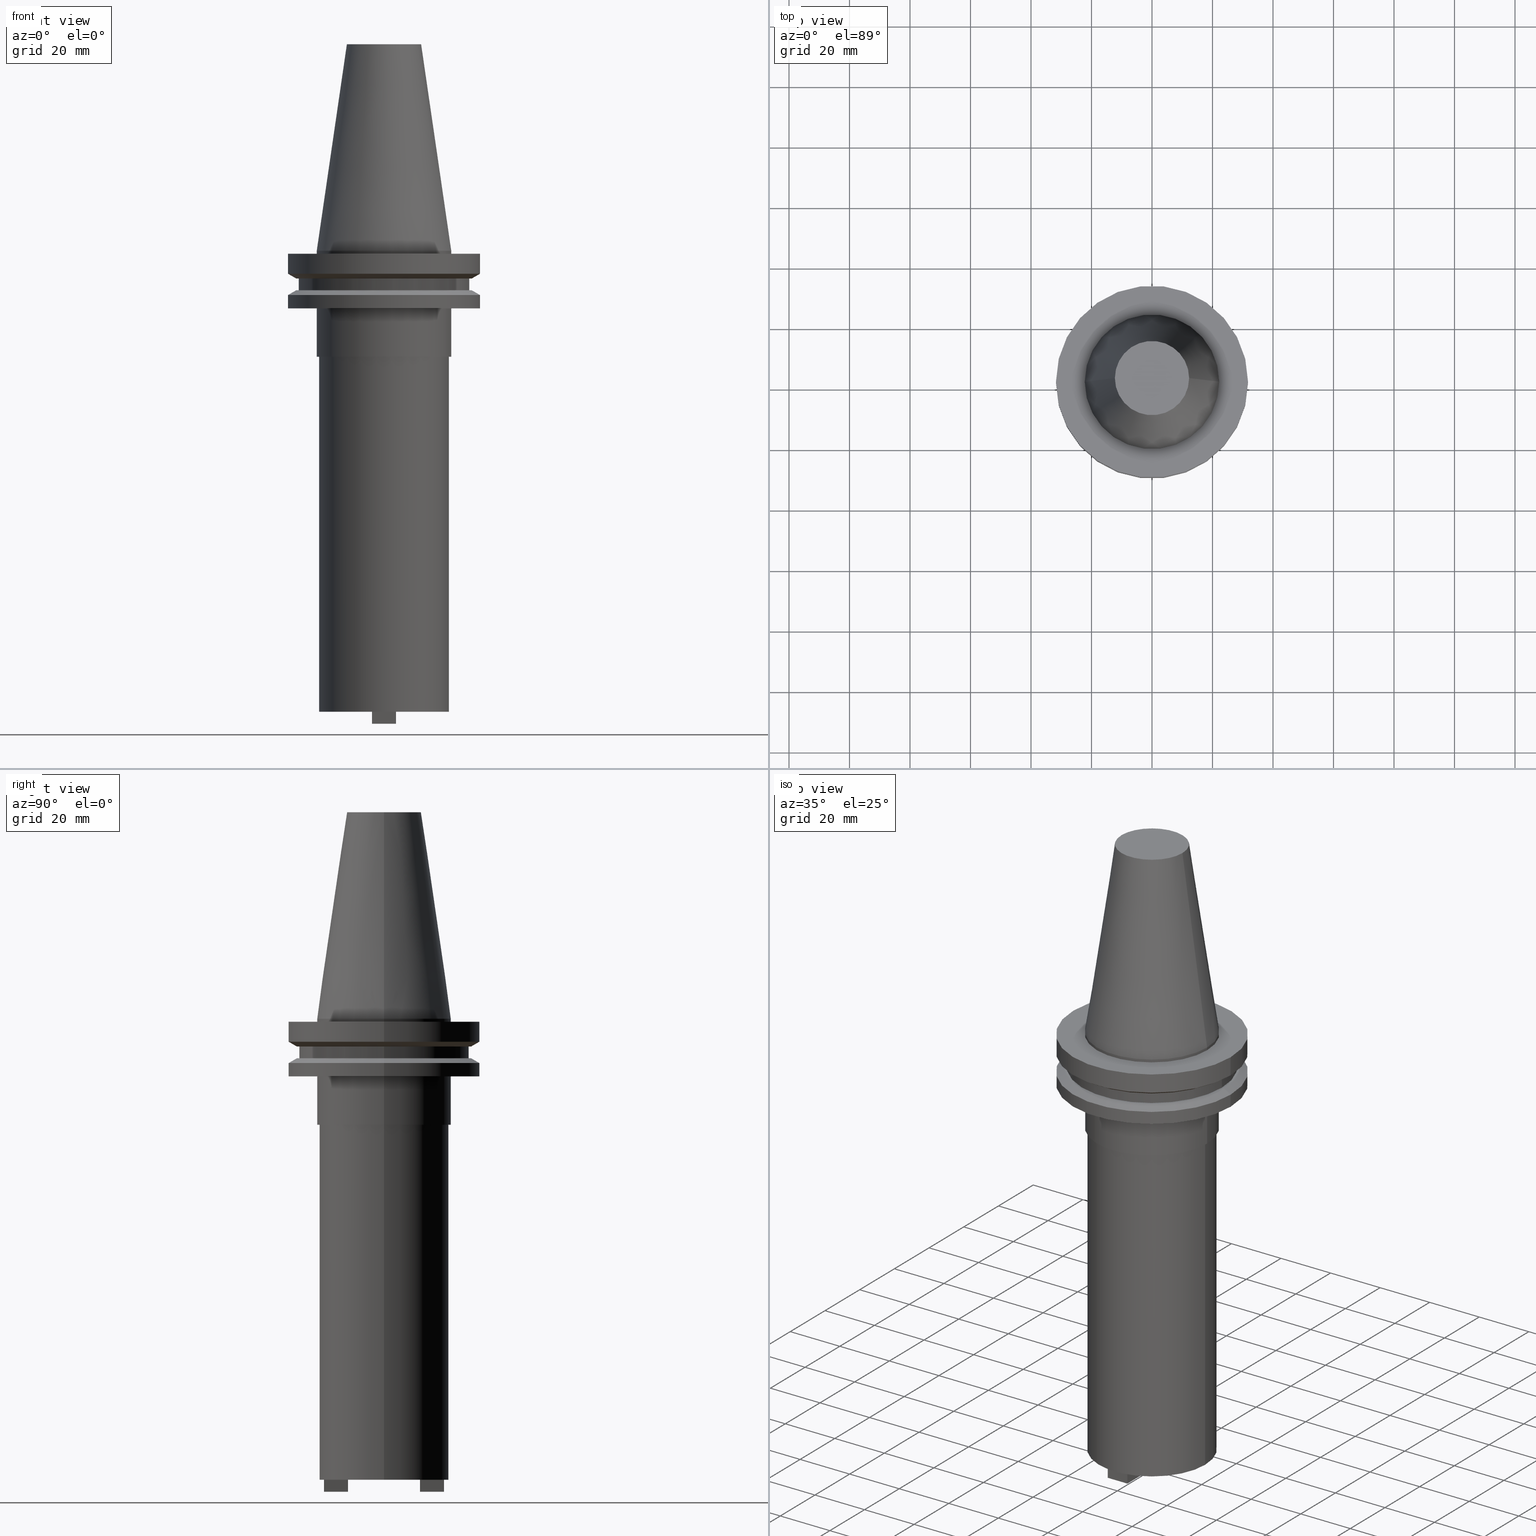
[diagram: canonical four-view strip — front | top / right | iso, engineering-drawing reading convention]
A machine part, canonical four-view strip (front | top / right | iso — engineering-drawing reading convention). The complete STEP part file that produces these views, byte-faithful:
ISO-10303-21;
HEADER;
FILE_DESCRIPTION (( 'STEP AP203' ),
    '1' );
FILE_NAME ('BCV40-SMC_750-6.STEP',
    '2022-02-25T14:57:58',
    ( '' ),
    ( '' ),
    'SwSTEP 2.0',
    'SolidWorks 2021',
    '' );
FILE_SCHEMA (( 'CONFIG_CONTROL_DESIGN' ));
ENDSEC;

DATA;
#1 = ORIENTED_EDGE ( 'NONE', *, *, #410, .T. ) ;
#2 = LINE ( 'NONE', #514, #229 ) ;
#3 = CARTESIAN_POINT ( 'NONE',  ( -4.215000000000001634, 5.161886258406095527E-16, 0.000000000000000000 ) ) ;
#4 = ORIENTED_EDGE ( 'NONE', *, *, #1050, .T. ) ;
#5 = ORIENTED_EDGE ( 'NONE', *, *, #367, .T. ) ;
#6 = DIRECTION ( 'NONE',  ( -0.000000000000000000, -0.000000000000000000, 1.000000000000000000 ) ) ;
#7 = CIRCLE ( 'NONE', #724, 31.75000000000000000 ) ;
#8 = LOCAL_TIME ( 8, 57, 58.00000000000000000, #537 ) ;
#9 = CARTESIAN_POINT ( 'NONE',  ( 0.000000000000000000, 0.000000000000000000, 0.000000000000000000 ) ) ;
#10 = ORIENTED_EDGE ( 'NONE', *, *, #488, .F. ) ;
#11 = ORIENTED_EDGE ( 'NONE', *, *, #858, .T. ) ;
#12 = DIRECTION ( 'NONE',  ( -0.000000000000000000, -0.000000000000000000, 1.000000000000000000 ) ) ;
#13 = AXIS2_PLACEMENT_3D ( 'NONE', #928, #614, #1008 ) ;
#14 = VECTOR ( 'NONE', #112, 1000.000000000000000 ) ;
#15 = AXIS2_PLACEMENT_3D ( 'NONE', #780, #177, #522 ) ;
#16 = EDGE_CURVE ( 'NONE', #720, #731, #697, .T. ) ;
#17 =( NAMED_UNIT ( * ) SI_UNIT ( $, .STERADIAN. ) SOLID_ANGLE_UNIT ( ) );
#18 = ORIENTED_EDGE ( 'NONE', *, *, #755, .T. ) ;
#19 = PRODUCT_DEFINITION_FORMATION_WITH_SPECIFIED_SOURCE ( 'ANY', '', #850, .NOT_KNOWN. ) ;
#20 = VERTEX_POINT ( 'NONE', #212 ) ;
#21 = DIRECTION ( 'NONE',  ( -0.000000000000000000, -0.000000000000000000, 1.000000000000000000 ) ) ;
#22 = CARTESIAN_POINT ( 'NONE',  ( 3.964999999999997193, -11.91000000000000014, -152.4000000000000057 ) ) ;
#23 = CARTESIAN_POINT ( 'NONE',  ( 3.964999999999997193, -11.90999999999999837, -156.3700000000000045 ) ) ;
#24 = ORIENTED_EDGE ( 'NONE', *, *, #86, .T. ) ;
#25 = EDGE_CURVE ( 'NONE', #184, #644, #283, .T. ) ;
#26 = DIRECTION ( 'NONE',  ( -0.000000000000000000, -0.000000000000000000, 1.000000000000000000 ) ) ;
#27 = AXIS2_PLACEMENT_3D ( 'NONE', #764, #599, #1087 ) ;
#28 = CARTESIAN_POINT ( 'NONE',  ( 4.215000000000006075, 0.000000000000000000, -152.4000000000000057 ) ) ;
#29 = ADVANCED_FACE ( 'NONE', ( #636 ), #314, .T. ) ;
#30 = VERTEX_POINT ( 'NONE', #948 ) ;
#31 = DIRECTION ( 'NONE',  ( 1.000000000000000000, 0.000000000000000000, 0.000000000000000000 ) ) ;
#32 = AXIS2_PLACEMENT_3D ( 'NONE', #656, #31, #1040 ) ;
#33 = DIRECTION ( 'NONE',  ( 1.000000000000000000, 0.000000000000000000, 0.000000000000000000 ) ) ;
#34 = EDGE_LOOP ( 'NONE', ( #1033, #916, #497, #323 ) ) ;
#35 = CARTESIAN_POINT ( 'NONE',  ( 21.44999999999999929, 0.000000000000000000, -152.4000000000000057 ) ) ;
#36 = APPROVAL_STATUS ( 'not_yet_approved' ) ;
#37 = DIRECTION ( 'NONE',  ( 1.000000000000000000, 0.000000000000000000, 0.000000000000000000 ) ) ;
#38 = VERTEX_POINT ( 'NONE', #865 ) ;
#39 = DIRECTION ( 'NONE',  ( -0.000000000000000000, -0.000000000000000000, 1.000000000000000000 ) ) ;
#40 = CIRCLE ( 'NONE', #435, 22.22500000000000142 ) ;
#41 = ORIENTED_EDGE ( 'NONE', *, *, #348, .F. ) ;
#42 = FACE_OUTER_BOUND ( 'NONE', #821, .T. ) ;
#43 = ADVANCED_FACE ( 'NONE', ( #860 ), #797, .T. ) ;
#44 = EDGE_LOOP ( 'NONE', ( #849, #788, #968, #531 ) ) ;
#45 = APPLICATION_CONTEXT ( 'configuration controlled 3d designs of mechanical parts and assemblies' ) ;
#46 = EDGE_LOOP ( 'NONE', ( #417, #11, #1009, #577 ) ) ;
#47 = LOCAL_TIME ( 8, 57, 58.00000000000000000, #120 ) ;
#48 = LINE ( 'NONE', #225, #96 ) ;
#49 = CALENDAR_DATE ( 2022, 25, 2 ) ;
#50 = FACE_OUTER_BOUND ( 'NONE', #142, .T. ) ;
#51 = PLANE ( 'NONE',  #32 ) ;
#52 = EDGE_CURVE ( 'NONE', #843, #832, #419, .T. ) ;
#53 = CARTESIAN_POINT ( 'NONE',  ( 0.000000000000000000, 0.000000000000000000, -35.04999999999999716 ) ) ;
#54 = CARTESIAN_POINT ( 'NONE',  ( 0.000000000000000000, 0.000000000000000000, -1.000000000000000888 ) ) ;
#55 = CARTESIAN_POINT ( 'NONE',  ( 22.22500000000000142, 2.721777511104992849E-15, 0.000000000000000000 ) ) ;
#56 = ORIENTED_EDGE ( 'NONE', *, *, #1050, .F. ) ;
#57 = CIRCLE ( 'NONE', #352, 21.44999999999999929 ) ;
#58 = EDGE_CURVE ( 'NONE', #180, #895, #40, .T. ) ;
#59 = DIRECTION ( 'NONE',  ( -1.000000000000000000, 0.000000000000000000, -0.000000000000000000 ) ) ;
#60 = DIRECTION ( 'NONE',  ( -1.000000000000000000, 0.000000000000000000, -0.000000000000000000 ) ) ;
#61 = DIRECTION ( 'NONE',  ( -1.000000000000000000, 0.000000000000000000, 0.000000000000000000 ) ) ;
#62 = ORIENTED_EDGE ( 'NONE', *, *, #367, .F. ) ;
#63 = EDGE_CURVE ( 'NONE', #762, #30, #944, .T. ) ;
#64 = DIRECTION ( 'NONE',  ( -0.000000000000000000, -0.000000000000000000, 1.000000000000000000 ) ) ;
#65 = CC_DESIGN_PERSON_AND_ORGANIZATION_ASSIGNMENT ( #958, #964, ( #842 ) ) ;
#66 = CARTESIAN_POINT ( 'NONE',  ( 3.964999999999997193, -11.90999999999999837, -156.3700000000000045 ) ) ;
#67 = VERTEX_POINT ( 'NONE', #196 ) ;
#68 = FACE_BOUND ( 'NONE', #680, .T. ) ;
#69 = ADVANCED_FACE ( 'NONE', ( #109 ), #453, .T. ) ;
#70 = PERSON ( 'UNSPECIFIED', 'UNSPECIFIED', 'UNSPECIFIED', ('UNSPECIFIED'), ('UNSPECIFIED'), ('UNSPECIFIED') ) ;
#71 = EDGE_CURVE ( 'NONE', #713, #922, #741, .T. ) ;
#72 = LINE ( 'NONE', #1062, #358 ) ;
#73 = ORIENTED_EDGE ( 'NONE', *, *, #63, .F. ) ;
#74 = ORIENTED_EDGE ( 'NONE', *, *, #255, .T. ) ;
#75 = CARTESIAN_POINT ( 'NONE',  ( 21.44999999999999929, 0.000000000000000000, -35.04999999999999716 ) ) ;
#76 = CONICAL_SURFACE ( 'NONE', #95, 28.97919780457007732, 1.047197551196598297 ) ;
#77 = CARTESIAN_POINT ( 'NONE',  ( -22.22500000000000142, 2.721777511104992849E-15, -19.04999999999999716 ) ) ;
#78 = CARTESIAN_POINT ( 'NONE',  ( 3.964999999999995417, 11.91000000000000192, -156.3700000000000045 ) ) ;
#79 = ORIENTED_EDGE ( 'NONE', *, *, #410, .F. ) ;
#80 = EDGE_LOOP ( 'NONE', ( #523, #772, #240, #939 ) ) ;
#81 = AXIS2_PLACEMENT_3D ( 'NONE', #681, #931, #852 ) ;
#82 = DIRECTION ( 'NONE',  ( 1.000000000000000000, 0.000000000000000000, 0.000000000000000000 ) ) ;
#83 = AXIS2_PLACEMENT_3D ( 'NONE', #683, #495, #407 ) ;
#84 = DIRECTION ( 'NONE',  ( -0.000000000000000000, -0.000000000000000000, 1.000000000000000000 ) ) ;
#85 = APPLICATION_PROTOCOL_DEFINITION ( 'international standard', 'config_control_design', 1994, #45 ) ;
#86 = EDGE_CURVE ( 'NONE', #38, #99, #1025, .T. ) ;
#87 = VERTEX_POINT ( 'NONE', #189 ) ;
#88 = CARTESIAN_POINT ( 'NONE',  ( -3.965000000000004299, 19.84000000000000341, -156.3700000000000045 ) ) ;
#89 = CARTESIAN_POINT ( 'NONE',  ( 0.000000000000000000, 0.000000000000000000, -35.04999999999999716 ) ) ;
#90 = CARTESIAN_POINT ( 'NONE',  ( -3.965000000000004299, -11.90999999999999837, -152.4000000000000057 ) ) ;
#91 = ORIENTED_EDGE ( 'NONE', *, *, #687, .F. ) ;
#92 = VERTEX_POINT ( 'NONE', #28 ) ;
#93 = FACE_OUTER_BOUND ( 'NONE', #304, .T. ) ;
#94 = ADVANCED_FACE ( 'NONE', ( #629 ), #76, .T. ) ;
#95 = AXIS2_PLACEMENT_3D ( 'NONE', #370, #712, #1032 ) ;
#96 = VECTOR ( 'NONE', #233, 1000.000000000000000 ) ;
#97 = DIRECTION ( 'NONE',  ( -1.000000000000000000, 0.000000000000000000, 0.000000000000000000 ) ) ;
#98 = EDGE_LOOP ( 'NONE', ( #1004, #236 ) ) ;
#99 = VERTEX_POINT ( 'NONE', #104 ) ;
#100 = CARTESIAN_POINT ( 'NONE',  ( -3.965000000000004299, -19.84000000000000341, -156.3700000000000045 ) ) ;
#101 = VECTOR ( 'NONE', #21, 1000.000000000000000 ) ;
#102 = CYLINDRICAL_SURFACE ( 'NONE', #927, 31.75000000000000000 ) ;
#103 = ADVANCED_FACE ( 'NONE', ( #124 ), #952, .F. ) ;
#104 = CARTESIAN_POINT ( 'NONE',  ( -31.75000000000000000, 3.888253587292846476E-15, -7.605276606597335842 ) ) ;
#105 = ORIENTED_EDGE ( 'NONE', *, *, #463, .T. ) ;
#106 = CARTESIAN_POINT ( 'NONE',  ( 0.000000000000000000, 0.000000000000000000, -14.65472339340266572 ) ) ;
#107 = EDGE_CURVE ( 'NONE', #935, #866, #164, .T. ) ;
#108 =( NAMED_UNIT ( * ) PLANE_ANGLE_UNIT ( ) SI_UNIT ( $, .RADIAN. ) );
#109 = FACE_OUTER_BOUND ( 'NONE', #467, .T. ) ;
#110 = ADVANCED_FACE ( 'NONE', ( #366, #116 ), #546, .F. ) ;
#111 = ORIENTED_EDGE ( 'NONE', *, *, #393, .F. ) ;
#112 = DIRECTION ( 'NONE',  ( 0.8660254037844389297, 0.000000000000000000, 0.4999999999999995004 ) ) ;
#113 = AXIS2_PLACEMENT_3D ( 'NONE', #879, #289, #208 ) ;
#114 = APPROVAL_DATE_TIME ( #465, #949 ) ;
#115 = CIRCLE ( 'NONE', #297, 28.97919780457007732 ) ;
#116 = FACE_BOUND ( 'NONE', #978, .T. ) ;
#117 = ORIENTED_EDGE ( 'NONE', *, *, #627, .T. ) ;
#118 = DIRECTION ( 'NONE',  ( 1.000000000000000000, 0.000000000000000000, 0.000000000000000000 ) ) ;
#119 = VECTOR ( 'NONE', #151, 1000.000000000000000 ) ;
#120 = COORDINATED_UNIVERSAL_TIME_OFFSET ( 6, 0, .BEHIND. ) ;
#121 = CARTESIAN_POINT ( 'NONE',  ( 0.000000000000000000, 0.000000000000000000, -152.4000000000000057 ) ) ;
#122 = ORIENTED_EDGE ( 'NONE', *, *, #277, .F. ) ;
#123 = COORDINATED_UNIVERSAL_TIME_OFFSET ( 6, 0, .BEHIND. ) ;
#124 = FACE_OUTER_BOUND ( 'NONE', #929, .T. ) ;
#125 = ORIENTED_EDGE ( 'NONE', *, *, #299, .T. ) ;
#126 = EDGE_CURVE ( 'NONE', #384, #214, #620, .T. ) ;
#127 = COORDINATED_UNIVERSAL_TIME_OFFSET ( 6, 0, .BEHIND. ) ;
#128 = CARTESIAN_POINT ( 'NONE',  ( 3.964999999999997193, -11.90999999999999837, -156.3700000000000045 ) ) ;
#129 = AXIS2_PLACEMENT_3D ( 'NONE', #926, #64, #329 ) ;
#130 = ORIENTED_EDGE ( 'NONE', *, *, #391, .F. ) ;
#131 = FACE_BOUND ( 'NONE', #300, .T. ) ;
#132 = CALENDAR_DATE ( 2022, 25, 2 ) ;
#133 = CYLINDRICAL_SURFACE ( 'NONE', #188, 31.75000000000000000 ) ;
#134 = EDGE_CURVE ( 'NONE', #922, #713, #57, .T. ) ;
#135 = DIRECTION ( 'NONE',  ( 1.000000000000000000, 0.000000000000000000, 0.000000000000000000 ) ) ;
#136 = ORIENTED_EDGE ( 'NONE', *, *, #1036, .F. ) ;
#137 = SECURITY_CLASSIFICATION ( '', '', #221 ) ;
#138 = DIRECTION ( 'NONE',  ( 1.000000000000000000, 0.000000000000000000, 0.000000000000000000 ) ) ;
#139 = LINE ( 'NONE', #145, #241 ) ;
#140 = EDGE_CURVE ( 'NONE', #180, #911, #874, .T. ) ;
#141 = CYLINDRICAL_SURFACE ( 'NONE', #287, 4.215000000000001634 ) ;
#142 = EDGE_LOOP ( 'NONE', ( #923, #147 ) ) ;
#143 = EDGE_CURVE ( 'NONE', #765, #866, #475, .T. ) ;
#144 = CARTESIAN_POINT ( 'NONE',  ( 3.964999999999997193, -19.83999999999999631, -156.3700000000000045 ) ) ;
#145 = CARTESIAN_POINT ( 'NONE',  ( -28.17999999999999972, 3.451054679997241634E-15, 68.25000000000000000 ) ) ;
#146 = FACE_OUTER_BOUND ( 'NONE', #777, .T. ) ;
#147 = ORIENTED_EDGE ( 'NONE', *, *, #616, .T. ) ;
#148 = VECTOR ( 'NONE', #624, 1000.000000000000000 ) ;
#149 = AXIS2_PLACEMENT_3D ( 'NONE', #980, #220, #138 ) ;
#150 = LINE ( 'NONE', #486, #494 ) ;
#151 = DIRECTION ( 'NONE',  ( 0.000000000000000000, -1.000000000000000000, 0.000000000000000000 ) ) ;
#152 = ORIENTED_EDGE ( 'NONE', *, *, #143, .T. ) ;
#153 = CIRCLE ( 'NONE', #587, 12.27178102086201150 ) ;
#154 = CONICAL_SURFACE ( 'NONE', #15, 31.75000000000000000, 1.047197551196597853 ) ;
#155 = CARTESIAN_POINT ( 'NONE',  ( 0.000000000000000000, 0.000000000000000000, 0.000000000000000000 ) ) ;
#156 = CARTESIAN_POINT ( 'NONE',  ( 0.000000000000000000, 0.000000000000000000, -9.205000000000005400 ) ) ;
#157 = DIRECTION ( 'NONE',  ( 0.000000000000000000, -0.000000000000000000, 1.000000000000000000 ) ) ;
#158 = VERTEX_POINT ( 'NONE', #500 ) ;
#159 = CARTESIAN_POINT ( 'NONE',  ( 0.000000000000000000, 22.22499999999999787, -35.04999999999999716 ) ) ;
#160 = DIRECTION ( 'NONE',  ( -0.000000000000000000, -0.000000000000000000, 1.000000000000000000 ) ) ;
#161 = CARTESIAN_POINT ( 'NONE',  ( 0.000000000000000000, 0.000000000000000000, 0.000000000000000000 ) ) ;
#162 = VERTEX_POINT ( 'NONE', #803 ) ;
#163 = ORIENTED_EDGE ( 'NONE', *, *, #280, .F. ) ;
#164 = CIRCLE ( 'NONE', #652, 31.75000000000000000 ) ;
#165 = PLANE ( 'NONE',  #891 ) ;
#166 = VECTOR ( 'NONE', #1051, 1000.000000000000000 ) ;
#167 = CARTESIAN_POINT ( 'NONE',  ( 0.000000000000000000, 0.000000000000000000, -19.04999999999999716 ) ) ;
#168 = ADVANCED_FACE ( 'NONE', ( #643 ), #133, .T. ) ;
#169 = DIRECTION ( 'NONE',  ( -0.000000000000000000, 0.000000000000000000, -1.000000000000000000 ) ) ;
#170 = ORIENTED_EDGE ( 'NONE', *, *, #134, .F. ) ;
#171 = EDGE_CURVE ( 'NONE', #441, #540, #139, .T. ) ;
#172 = ORIENTED_EDGE ( 'NONE', *, *, #653, .T. ) ;
#173 = AXIS2_PLACEMENT_3D ( 'NONE', #778, #957, #737 ) ;
#174 = DIRECTION ( 'NONE',  ( -0.000000000000000000, -0.000000000000000000, 1.000000000000000000 ) ) ;
#175 = LOCAL_TIME ( 8, 57, 58.00000000000000000, #123 ) ;
#176 = DIRECTION ( 'NONE',  ( 1.000000000000000000, 0.000000000000000000, 0.000000000000000000 ) ) ;
#177 = DIRECTION ( 'NONE',  ( 0.000000000000000000, 0.000000000000000000, -1.000000000000000000 ) ) ;
#178 = EDGE_LOOP ( 'NONE', ( #718, #403, #801, #558 ) ) ;
#179 = ADVANCED_FACE ( 'NONE', ( #42 ), #481, .F. ) ;
#180 = VERTEX_POINT ( 'NONE', #660 ) ;
#181 = CARTESIAN_POINT ( 'NONE',  ( -21.44999999999999929, 2.626867384171072557E-15, 0.000000000000000000 ) ) ;
#182 = DESIGN_CONTEXT ( 'detailed design', #735, 'design' ) ;
#183 = DIRECTION ( 'NONE',  ( -0.000000000000000000, 1.000000000000000000, -0.000000000000000000 ) ) ;
#184 = VERTEX_POINT ( 'NONE', #309 ) ;
#185 = ORIENTED_EDGE ( 'NONE', *, *, #767, .T. ) ;
#186 = LINE ( 'NONE', #181, #1065 ) ;
#187 = EDGE_CURVE ( 'NONE', #987, #983, #976, .T. ) ;
#188 = AXIS2_PLACEMENT_3D ( 'NONE', #897, #1052, #819 ) ;
#189 = CARTESIAN_POINT ( 'NONE',  ( -31.75000000000000000, 3.888253587292846476E-15, -1.000000000000000888 ) ) ;
#190 = ORIENTED_EDGE ( 'NONE', *, *, #814, .T. ) ;
#191 = DIRECTION ( 'NONE',  ( -0.000000000000000000, -0.000000000000000000, 1.000000000000000000 ) ) ;
#192 = EDGE_CURVE ( 'NONE', #162, #67, #386, .T. ) ;
#193 = AXIS2_PLACEMENT_3D ( 'NONE', #462, #794, #379 ) ;
#194 = EDGE_CURVE ( 'NONE', #99, #762, #1058, .T. ) ;
#195 = LINE ( 'NONE', #90, #231 ) ;
#196 = CARTESIAN_POINT ( 'NONE',  ( 3.964999999999997193, -11.90999999999999837, -156.3700000000000045 ) ) ;
#197 = ORIENTED_EDGE ( 'NONE', *, *, #86, .F. ) ;
#198 = DIRECTION ( 'NONE',  ( 1.000000000000000000, -0.000000000000000000, -0.000000000000000000 ) ) ;
#199 = APPLICATION_PROTOCOL_DEFINITION ( 'international standard', 'config_control_design', 1994, #735 ) ;
#200 = CARTESIAN_POINT ( 'NONE',  ( -28.97919780457007732, 3.548928183322474856E-15, -9.205000000000005400 ) ) ;
#201 = ORIENTED_EDGE ( 'NONE', *, *, #877, .T. ) ;
#202 = CARTESIAN_POINT ( 'NONE',  ( 0.000000000000000000, 0.000000000000000000, 68.25000000000000000 ) ) ;
#203 = CC_DESIGN_APPROVAL ( #460, ( #842 ) ) ;
#204 = UNCERTAINTY_MEASURE_WITH_UNIT (LENGTH_MEASURE( 1.000000000000000082E-05 ), #864, 'distance_accuracy_value', 'NONE');
#205 = VECTOR ( 'NONE', #1042, 1000.000000000000000 ) ;
#206 = PERSON_AND_ORGANIZATION ( #70, #707 ) ;
#207 = AXIS2_PLACEMENT_3D ( 'NONE', #155, #503, #658 ) ;
#208 = DIRECTION ( 'NONE',  ( 1.000000000000000000, 0.000000000000000000, 0.000000000000000000 ) ) ;
#209 = EDGE_LOOP ( 'NONE', ( #41, #371 ) ) ;
#210 = CARTESIAN_POINT ( 'NONE',  ( 3.964999999999995417, 19.84000000000000341, -156.3700000000000045 ) ) ;
#211 = PERSON_AND_ORGANIZATION ( #70, #707 ) ;
#212 = CARTESIAN_POINT ( 'NONE',  ( -3.965000000000004299, 11.91000000000000192, -152.4000000000000057 ) ) ;
#213 = CC_DESIGN_SECURITY_CLASSIFICATION ( #137, ( #19 ) ) ;
#214 = VERTEX_POINT ( 'NONE', #396 ) ;
#215 = EDGE_CURVE ( 'NONE', #723, #413, #981, .T. ) ;
#216 = DIRECTION ( 'NONE',  ( 1.000000000000000000, 0.000000000000000000, 0.000000000000000000 ) ) ;
#217 = DIRECTION ( 'NONE',  ( -0.000000000000000000, -0.000000000000000000, 1.000000000000000000 ) ) ;
#218 = EDGE_LOOP ( 'NONE', ( #440, #420, #74, #526 ) ) ;
#219 = EDGE_LOOP ( 'NONE', ( #566, #646, #18, #273 ) ) ;
#220 = DIRECTION ( 'NONE',  ( -0.000000000000000000, -0.000000000000000000, 1.000000000000000000 ) ) ;
#221 = SECURITY_CLASSIFICATION_LEVEL ( 'unclassified' ) ;
#222 = FACE_BOUND ( 'NONE', #209, .T. ) ;
#223 = AXIS2_PLACEMENT_3D ( 'NONE', #493, #60, #972 ) ;
#224 = EDGE_LOOP ( 'NONE', ( #434, #152, #770, #387 ) ) ;
#225 = CARTESIAN_POINT ( 'NONE',  ( -31.75000000000000000, 3.888253587292846476E-15, 68.25000000000000000 ) ) ;
#226 = ADVANCED_FACE ( 'NONE', ( #222, #50 ), #238, .F. ) ;
#227 = EDGE_CURVE ( 'NONE', #673, #20, #390, .T. ) ;
#228 = CARTESIAN_POINT ( 'NONE',  ( 21.44999999999999929, 0.000000000000000000, 0.000000000000000000 ) ) ;
#229 = VECTOR ( 'NONE', #773, 999.9999999999998863 ) ;
#230 = FACE_OUTER_BOUND ( 'NONE', #424, .T. ) ;
#231 = VECTOR ( 'NONE', #785, 1000.000000000000000 ) ;
#232 = ORIENTED_EDGE ( 'NONE', *, *, #877, .F. ) ;
#233 = DIRECTION ( 'NONE',  ( -0.000000000000000000, -0.000000000000000000, 1.000000000000000000 ) ) ;
#234 = DIRECTION ( 'NONE',  ( -0.000000000000000000, -0.000000000000000000, 1.000000000000000000 ) ) ;
#235 = DIRECTION ( 'NONE',  ( 1.000000000000000000, 0.000000000000000000, 0.000000000000000000 ) ) ;
#236 = ORIENTED_EDGE ( 'NONE', *, *, #372, .T. ) ;
#237 = FACE_BOUND ( 'NONE', #756, .T. ) ;
#238 = PLANE ( 'NONE',  #260 ) ;
#239 = FACE_OUTER_BOUND ( 'NONE', #219, .T. ) ;
#240 = ORIENTED_EDGE ( 'NONE', *, *, #1068, .T. ) ;
#241 = VECTOR ( 'NONE', #234, 1000.000000000000000 ) ;
#242 = EDGE_CURVE ( 'NONE', #713, #583, #319, .T. ) ;
#243 = VECTOR ( 'NONE', #160, 1000.000000000000000 ) ;
#244 = DIRECTION ( 'NONE',  ( -0.000000000000000000, -0.000000000000000000, 1.000000000000000000 ) ) ;
#245 = CARTESIAN_POINT ( 'NONE',  ( 3.964999999999995417, 19.84000000000000341, -156.3700000000000045 ) ) ;
#246 = DIRECTION ( 'NONE',  ( -0.000000000000000000, -0.000000000000000000, 1.000000000000000000 ) ) ;
#247 = EDGE_LOOP ( 'NONE', ( #190, #24, #136, #91 ) ) ;
#248 = AXIS2_PLACEMENT_3D ( 'NONE', #946, #807, #719 ) ;
#249 = ADVANCED_FACE ( 'NONE', ( #665 ), #557, .T. ) ;
#250 = CARTESIAN_POINT ( 'NONE',  ( 3.964999999999995417, 19.84000000000000341, -156.3700000000000045 ) ) ;
#251 = DIRECTION ( 'NONE',  ( -0.000000000000000000, -0.000000000000000000, 1.000000000000000000 ) ) ;
#252 = DIRECTION ( 'NONE',  ( 0.000000000000000000, 1.000000000000000000, 0.000000000000000000 ) ) ;
#253 = ORIENTED_EDGE ( 'NONE', *, *, #1083, .T. ) ;
#254 = CYLINDRICAL_SURFACE ( 'NONE', #908, 31.75000000000000000 ) ;
#255 = EDGE_CURVE ( 'NONE', #290, #583, #954, .T. ) ;
#256 = CARTESIAN_POINT ( 'NONE',  ( 22.22500000000000142, 0.000000000000000000, 68.25000000000000000 ) ) ;
#257 = CYLINDRICAL_SURFACE ( 'NONE', #714, 21.44999999999999929 ) ;
#258 = ORIENTED_EDGE ( 'NONE', *, *, #1083, .F. ) ;
#259 = ORIENTED_EDGE ( 'NONE', *, *, #455, .F. ) ;
#260 = AXIS2_PLACEMENT_3D ( 'NONE', #1069, #649, #325 ) ;
#261 = DIRECTION ( 'NONE',  ( 1.000000000000000000, 0.000000000000000000, 0.000000000000000000 ) ) ;
#262 = AXIS2_PLACEMENT_3D ( 'NONE', #822, #651, #328 ) ;
#263 = CARTESIAN_POINT ( 'NONE',  ( 0.000000000000000000, 0.000000000000000000, -13.05499999999999794 ) ) ;
#264 = ADVANCED_FACE ( 'NONE', ( #1061 ), #581, .T. ) ;
#265 = CARTESIAN_POINT ( 'NONE',  ( 3.964999999999997193, -19.83999999999998920, -152.4000000000000057 ) ) ;
#266 = ORIENTED_EDGE ( 'NONE', *, *, #381, .T. ) ;
#267 = ORIENTED_EDGE ( 'NONE', *, *, #622, .F. ) ;
#268 = AXIS2_PLACEMENT_3D ( 'NONE', #940, #532, #451 ) ;
#269 = DIRECTION ( 'NONE',  ( -0.000000000000000000, -0.000000000000000000, 1.000000000000000000 ) ) ;
#270 = CIRCLE ( 'NONE', #1066, 31.75000000000000000 ) ;
#271 = DIRECTION ( 'NONE',  ( -0.000000000000000000, -0.000000000000000000, 1.000000000000000000 ) ) ;
#272 = DIRECTION ( 'NONE',  ( -0.000000000000000000, -0.000000000000000000, 1.000000000000000000 ) ) ;
#273 = ORIENTED_EDGE ( 'NONE', *, *, #340, .F. ) ;
#274 = DIRECTION ( 'NONE',  ( -0.000000000000000000, -0.000000000000000000, 1.000000000000000000 ) ) ;
#275 = LINE ( 'NONE', #355, #551 ) ;
#276 = DIRECTION ( 'NONE',  ( -1.000000000000000000, 0.000000000000000000, 0.000000000000000000 ) ) ;
#277 = EDGE_CURVE ( 'NONE', #214, #935, #150, .T. ) ;
#278 = ORIENTED_EDGE ( 'NONE', *, *, #474, .T. ) ;
#279 = DIRECTION ( 'NONE',  ( -0.000000000000000000, -0.000000000000000000, 1.000000000000000000 ) ) ;
#280 = EDGE_CURVE ( 'NONE', #30, #87, #7, .T. ) ;
#281 = AXIS2_PLACEMENT_3D ( 'NONE', #466, #538, #276 ) ;
#282 = CARTESIAN_POINT ( 'NONE',  ( 0.000000000000000000, 0.000000000000000000, -156.3700000000000045 ) ) ;
#283 = LINE ( 'NONE', #534, #148 ) ;
#284 = ORIENTED_EDGE ( 'NONE', *, *, #1081, .F. ) ;
#285 = CARTESIAN_POINT ( 'NONE',  ( 28.97919780457007732, 0.000000000000000000, -9.205000000000005400 ) ) ;
#286 = AXIS2_PLACEMENT_3D ( 'NONE', #159, #924, #936 ) ;
#287 = AXIS2_PLACEMENT_3D ( 'NONE', #161, #511, #501 ) ;
#288 = FACE_OUTER_BOUND ( 'NONE', #798, .T. ) ;
#289 = DIRECTION ( 'NONE',  ( -0.000000000000000000, -0.000000000000000000, 1.000000000000000000 ) ) ;
#290 = VERTEX_POINT ( 'NONE', #586 ) ;
#291 = CARTESIAN_POINT ( 'NONE',  ( 28.97919780457008088, 3.718590885307660666E-15, -13.05499999999999794 ) ) ;
#292 = DIRECTION ( 'NONE',  ( -0.000000000000000000, -0.000000000000000000, 1.000000000000000000 ) ) ;
#293 = ADVANCED_BREP_SHAPE_REPRESENTATION ( 'BCV40-SMC_750-6', ( #668, #562 ), #600 ) ;
#294 = EDGE_LOOP ( 'NONE', ( #905, #10 ) ) ;
#295 = DIRECTION ( 'NONE',  ( -0.1443082272672999711, 0.000000000000000000, -0.9895327864921755756 ) ) ;
#296 = VECTOR ( 'NONE', #272, 1000.000000000000000 ) ;
#297 = AXIS2_PLACEMENT_3D ( 'NONE', #156, #251, #991 ) ;
#298 = CARTESIAN_POINT ( 'NONE',  ( 0.000000000000000000, 0.000000000000000000, 0.000000000000000000 ) ) ;
#299 = EDGE_CURVE ( 'NONE', #720, #861, #342, .T. ) ;
#300 = EDGE_LOOP ( 'NONE', ( #450, #278 ) ) ;
#301 = ORIENTED_EDGE ( 'NONE', *, *, #913, .T. ) ;
#302 = CIRCLE ( 'NONE', #859, 22.22500000000000142 ) ;
#303 = CARTESIAN_POINT ( 'NONE',  ( -3.965000000000004299, 19.84000000000000341, -156.3700000000000045 ) ) ;
#304 = EDGE_LOOP ( 'NONE', ( #1010, #808 ) ) ;
#305 = EDGE_CURVE ( 'NONE', #158, #935, #676, .T. ) ;
#306 = ORIENTED_EDGE ( 'NONE', *, *, #25, .F. ) ;
#307 = CARTESIAN_POINT ( 'NONE',  ( 0.000000000000000000, 0.000000000000000000, -13.05499999999999794 ) ) ;
#308 = PERSON_AND_ORGANIZATION ( #70, #707 ) ;
#309 = CARTESIAN_POINT ( 'NONE',  ( 3.964999999999997193, -19.83999999999999631, -156.3700000000000045 ) ) ;
#310 = EDGE_LOOP ( 'NONE', ( #484, #1057, #327, #573 ) ) ;
#311 = ADVANCED_FACE ( 'NONE', ( #909, #914 ), #829, .F. ) ;
#312 = LINE ( 'NONE', #409, #166 ) ;
#313 = CARTESIAN_POINT ( 'NONE',  ( 0.000000000000000000, 0.000000000000000000, -35.04999999999999716 ) ) ;
#314 = CONICAL_SURFACE ( 'NONE', #281, 22.22500000000000142, 0.1448138465474119174 ) ;
#315 = LINE ( 'NONE', #790, #1013 ) ;
#316 = CIRCLE ( 'NONE', #437, 28.17999999999999972 ) ;
#317 = ORIENTED_EDGE ( 'NONE', *, *, #814, .F. ) ;
#318 = FACE_BOUND ( 'NONE', #345, .T. ) ;
#319 = LINE ( 'NONE', #228, #901 ) ;
#320 = CIRCLE ( 'NONE', #925, 31.75000000000000000 ) ;
#321 = CYLINDRICAL_SURFACE ( 'NONE', #639, 22.22500000000000142 ) ;
#322 = AXIS2_PLACEMENT_3D ( 'NONE', #282, #169, #448 ) ;
#323 = ORIENTED_EDGE ( 'NONE', *, *, #616, .F. ) ;
#324 = LOCAL_TIME ( 8, 57, 58.00000000000000000, #127 ) ;
#325 = DIRECTION ( 'NONE',  ( -1.000000000000000000, 0.000000000000000000, -0.000000000000000000 ) ) ;
#326 = DIRECTION ( 'NONE',  ( -0.000000000000000000, -0.000000000000000000, 1.000000000000000000 ) ) ;
#327 = ORIENTED_EDGE ( 'NONE', *, *, #726, .T. ) ;
#328 = DIRECTION ( 'NONE',  ( 1.000000000000000000, 0.000000000000000000, 0.000000000000000000 ) ) ;
#329 = DIRECTION ( 'NONE',  ( 1.000000000000000000, 0.000000000000000000, 0.000000000000000000 ) ) ;
#330 = DIRECTION ( 'NONE',  ( 1.000000000000000000, 0.000000000000000000, 0.000000000000000000 ) ) ;
#331 = ORIENTED_EDGE ( 'NONE', *, *, #1068, .F. ) ;
#332 = CIRCLE ( 'NONE', #129, 22.22500000000000142 ) ;
#333 = FACE_OUTER_BOUND ( 'NONE', #615, .T. ) ;
#334 = CARTESIAN_POINT ( 'NONE',  ( 0.000000000000000000, 0.000000000000000000, -13.05499999999999794 ) ) ;
#335 = CARTESIAN_POINT ( 'NONE',  ( 3.964999999999997193, -11.90999999999999837, -156.3700000000000045 ) ) ;
#336 = ORIENTED_EDGE ( 'NONE', *, *, #732, .F. ) ;
#337 = AXIS2_PLACEMENT_3D ( 'NONE', #347, #766, #675 ) ;
#338 = ORIENTED_EDGE ( 'NONE', *, *, #455, .T. ) ;
#339 = DIRECTION ( 'NONE',  ( 0.000000000000000000, 0.000000000000000000, -1.000000000000000000 ) ) ;
#340 = EDGE_CURVE ( 'NONE', #92, #843, #431, .T. ) ;
#341 = CC_DESIGN_PERSON_AND_ORGANIZATION_ASSIGNMENT ( #376, #642, ( #19 ) ) ;
#342 = LINE ( 'NONE', #245, #853 ) ;
#343 = DIRECTION ( 'NONE',  ( -1.000000000000000000, 0.000000000000000000, -0.000000000000000000 ) ) ;
#344 = ORIENTED_EDGE ( 'NONE', *, *, #255, .F. ) ;
#345 = EDGE_LOOP ( 'NONE', ( #56, #259, #554, #258 ) ) ;
#346 = EDGE_CURVE ( 'NONE', #502, #880, #527, .T. ) ;
#347 = CARTESIAN_POINT ( 'NONE',  ( 0.000000000000000000, 12.27178102086201150, 68.25000000000000000 ) ) ;
#348 = EDGE_CURVE ( 'NONE', #895, #180, #332, .T. ) ;
#349 = DIRECTION ( 'NONE',  ( 1.000000000000000000, 0.000000000000000000, 0.000000000000000000 ) ) ;
#350 = CARTESIAN_POINT ( 'NONE',  ( 0.000000000000000000, 0.000000000000000000, 0.000000000000000000 ) ) ;
#351 = ORIENTED_EDGE ( 'NONE', *, *, #227, .F. ) ;
#352 = AXIS2_PLACEMENT_3D ( 'NONE', #1038, #292, #632 ) ;
#353 = CARTESIAN_POINT ( 'NONE',  ( 22.22500000000000142, 0.000000000000000000, 68.25000000000000000 ) ) ;
#354 = AXIS2_PLACEMENT_3D ( 'NONE', #263, #670, #176 ) ;
#355 = CARTESIAN_POINT ( 'NONE',  ( -3.965000000000004299, 19.84000000000000341, -152.4000000000000057 ) ) ;
#356 = ORIENTED_EDGE ( 'NONE', *, *, #953, .F. ) ;
#357 = ORIENTED_EDGE ( 'NONE', *, *, #16, .T. ) ;
#358 = VECTOR ( 'NONE', #760, 1000.000000000000000 ) ;
#359 = FACE_OUTER_BOUND ( 'NONE', #625, .T. ) ;
#360 = EDGE_CURVE ( 'NONE', #775, #832, #1002, .T. ) ;
#361 = FACE_OUTER_BOUND ( 'NONE', #224, .T. ) ;
#362 = EDGE_LOOP ( 'NONE', ( #884, #185, #125, #999 ) ) ;
#363 = ORIENTED_EDGE ( 'NONE', *, *, #463, .F. ) ;
#364 = LINE ( 'NONE', #285, #14 ) ;
#365 = DIRECTION ( 'NONE',  ( -0.000000000000000000, -0.000000000000000000, 1.000000000000000000 ) ) ;
#366 = FACE_OUTER_BOUND ( 'NONE', #612, .T. ) ;
#367 = EDGE_CURVE ( 'NONE', #158, #765, #818, .T. ) ;
#368 = ORIENTED_EDGE ( 'NONE', *, *, #858, .F. ) ;
#369 = LINE ( 'NONE', #703, #443 ) ;
#370 = CARTESIAN_POINT ( 'NONE',  ( 0.000000000000000000, 0.000000000000000000, -9.205000000000005400 ) ) ;
#371 = ORIENTED_EDGE ( 'NONE', *, *, #58, .F. ) ;
#372 = EDGE_CURVE ( 'NONE', #540, #596, #872, .T. ) ;
#373 = CARTESIAN_POINT ( 'NONE',  ( -4.215000000000001634, 5.161886258406095527E-16, -35.04999999999999716 ) ) ;
#374 = AXIS2_PLACEMENT_3D ( 'NONE', #1067, #900, #994 ) ;
#375 = EDGE_CURVE ( 'NONE', #38, #657, #115, .T. ) ;
#376 = PERSON_AND_ORGANIZATION ( #70, #707 ) ;
#377 = CARTESIAN_POINT ( 'NONE',  ( 0.000000000000000000, 0.000000000000000000, -19.04999999999999716 ) ) ;
#378 = EDGE_LOOP ( 'NONE', ( #356, #344 ) ) ;
#379 = DIRECTION ( 'NONE',  ( 1.000000000000000000, 0.000000000000000000, 0.000000000000000000 ) ) ;
#380 = ORIENTED_EDGE ( 'NONE', *, *, #828, .F. ) ;
#381 = EDGE_CURVE ( 'NONE', #524, #392, #512, .T. ) ;
#382 = SHAPE_DEFINITION_REPRESENTATION ( #607, #293 ) ;
#383 = DIRECTION ( 'NONE',  ( 1.000000000000000000, 0.000000000000000000, 0.000000000000000000 ) ) ;
#384 = VERTEX_POINT ( 'NONE', #505 ) ;
#385 = VECTOR ( 'NONE', #415, 1000.000000000000000 ) ;
#386 = LINE ( 'NONE', #128, #457 ) ;
#387 = ORIENTED_EDGE ( 'NONE', *, *, #305, .F. ) ;
#388 = VECTOR ( 'NONE', #571, 1000.000000000000000 ) ;
#389 = CALENDAR_DATE ( 2022, 25, 2 ) ;
#390 = LINE ( 'NONE', #580, #769 ) ;
#391 = EDGE_CURVE ( 'NONE', #744, #441, #902, .T. ) ;
#392 = VERTEX_POINT ( 'NONE', #77 ) ;
#393 = EDGE_CURVE ( 'NONE', #895, #933, #682, .T. ) ;
#394 = CARTESIAN_POINT ( 'NONE',  ( 3.964999999999997193, -19.83999999999999631, -152.4000000000000057 ) ) ;
#395 = APPROVAL_ROLE ( '' ) ;
#396 = CARTESIAN_POINT ( 'NONE',  ( -31.74999999999999289, 3.888253587292845687E-15, -19.04999999999999716 ) ) ;
#397 = CARTESIAN_POINT ( 'NONE',  ( 4.215000000000001634, 0.000000000000000000, -35.04999999999999716 ) ) ;
#398 = ORIENTED_EDGE ( 'NONE', *, *, #425, .F. ) ;
#399 = FACE_OUTER_BOUND ( 'NONE', #870, .T. ) ;
#400 = DIRECTION ( 'NONE',  ( -0.000000000000000000, -0.000000000000000000, 1.000000000000000000 ) ) ;
#401 = DIRECTION ( 'NONE',  ( 1.000000000000000000, 0.000000000000000000, 0.000000000000000000 ) ) ;
#402 = CIRCLE ( 'NONE', #1007, 4.215000000000006075 ) ;
#403 = ORIENTED_EDGE ( 'NONE', *, *, #277, .T. ) ;
#404 = CARTESIAN_POINT ( 'NONE',  ( -28.17999999999999972, 3.451054679997241634E-15, -13.05499999999999794 ) ) ;
#405 = DIRECTION ( 'NONE',  ( 1.000000000000000000, -0.000000000000000000, -0.000000000000000000 ) ) ;
#406 = VECTOR ( 'NONE', #326, 1000.000000000000000 ) ;
#407 = DIRECTION ( 'NONE',  ( -1.000000000000000000, -8.750181467726643344E-16, 0.000000000000000000 ) ) ;
#408 = ORIENTED_EDGE ( 'NONE', *, *, #215, .F. ) ;
#409 = CARTESIAN_POINT ( 'NONE',  ( -3.965000000000004299, -11.90999999999999837, -156.3700000000000045 ) ) ;
#410 = EDGE_CURVE ( 'NONE', #214, #384, #604, .T. ) ;
#411 = DIRECTION ( 'NONE',  ( 1.000000000000000000, 0.000000000000000000, 0.000000000000000000 ) ) ;
#412 = LINE ( 'NONE', #904, #119 ) ;
#413 = VERTEX_POINT ( 'NONE', #975 ) ;
#414 = LINE ( 'NONE', #144, #956 ) ;
#415 = DIRECTION ( 'NONE',  ( -0.8660254037844387076, 0.000000000000000000, -0.4999999999999998890 ) ) ;
#416 = DIRECTION ( 'NONE',  ( -0.000000000000000000, 0.000000000000000000, 1.000000000000000000 ) ) ;
#417 = ORIENTED_EDGE ( 'NONE', *, *, #346, .T. ) ;
#418 = EDGE_CURVE ( 'NONE', #441, #744, #316, .T. ) ;
#419 = CIRCLE ( 'NONE', #113, 4.215000000000001634 ) ;
#420 = ORIENTED_EDGE ( 'NONE', *, *, #622, .T. ) ;
#421 = CARTESIAN_POINT ( 'NONE',  ( 0.000000000000000000, 0.000000000000000000, -19.04999999999999716 ) ) ;
#422 = CARTESIAN_POINT ( 'NONE',  ( -3.965000000000004299, -11.91000000000000014, -152.4000000000000057 ) ) ;
#423 = CIRCLE ( 'NONE', #1030, 28.97919780457008088 ) ;
#424 = EDGE_LOOP ( 'NONE', ( #950, #751, #694, #590 ) ) ;
#425 = EDGE_CURVE ( 'NONE', #644, #162, #312, .T. ) ;
#426 = EDGE_LOOP ( 'NONE', ( #1063, #1084, #1049, #336 ) ) ;
#427 = CARTESIAN_POINT ( 'NONE',  ( 28.97919780457007732, 0.000000000000000000, -9.205000000000005400 ) ) ;
#428 = DIRECTION ( 'NONE',  ( 1.000000000000000000, 0.000000000000000000, 0.000000000000000000 ) ) ;
#429 = CARTESIAN_POINT ( 'NONE',  ( 3.964999999999997193, -11.90999999999999837, -152.4000000000000057 ) ) ;
#430 = LINE ( 'NONE', #862, #101 ) ;
#431 = LINE ( 'NONE', #997, #802 ) ;
#432 = DIRECTION ( 'NONE',  ( 0.000000000000000000, -1.000000000000000000, 0.000000000000000000 ) ) ;
#433 = ORIENTED_EDGE ( 'NONE', *, *, #593, .F. ) ;
#434 = ORIENTED_EDGE ( 'NONE', *, *, #653, .F. ) ;
#435 = AXIS2_PLACEMENT_3D ( 'NONE', #705, #39, #722 ) ;
#436 = CARTESIAN_POINT ( 'NONE',  ( -3.965000000000004299, -19.84000000000000341, -156.3700000000000045 ) ) ;
#437 = AXIS2_PLACEMENT_3D ( 'NONE', #307, #485, #499 ) ;
#438 = ADVANCED_FACE ( 'NONE', ( #68, #669 ), #815, .F. ) ;
#439 = CARTESIAN_POINT ( 'NONE',  ( 3.964999999999997193, -11.90999999999999837, -156.3700000000000045 ) ) ;
#440 = ORIENTED_EDGE ( 'NONE', *, *, #71, .T. ) ;
#441 = VERTEX_POINT ( 'NONE', #404 ) ;
#442 = CIRCLE ( 'NONE', #13, 12.27178102086201150 ) ;
#443 = VECTOR ( 'NONE', #873, 1000.000000000000000 ) ;
#444 = PLANE ( 'NONE',  #193 ) ;
#445 = AXIS2_PLACEMENT_3D ( 'NONE', #608, #365, #768 ) ;
#446 = APPROVAL_PERSON_ORGANIZATION ( #308, #491, #552 ) ;
#447 = ADVANCED_FACE ( 'NONE', ( #984 ), #749, .T. ) ;
#448 = DIRECTION ( 'NONE',  ( -1.000000000000000000, 0.000000000000000000, 0.000000000000000000 ) ) ;
#449 = DIRECTION ( 'NONE',  ( 0.000000000000000000, 0.000000000000000000, -1.000000000000000000 ) ) ;
#450 = ORIENTED_EDGE ( 'NONE', *, *, #988, .T. ) ;
#451 = DIRECTION ( 'NONE',  ( 1.000000000000000000, 0.000000000000000000, 0.000000000000000000 ) ) ;
#452 = DIRECTION ( 'NONE',  ( 1.000000000000000000, -0.000000000000000000, -0.000000000000000000 ) ) ;
#453 = PLANE ( 'NONE',  #563 ) ;
#454 = VERTEX_POINT ( 'NONE', #885 ) ;
#455 = EDGE_CURVE ( 'NONE', #983, #795, #560, .T. ) ;
#456 = CARTESIAN_POINT ( 'NONE',  ( 3.964999999999995417, 11.91000000000000192, -156.3700000000000045 ) ) ;
#457 = VECTOR ( 'NONE', #405, 1000.000000000000000 ) ;
#458 = VECTOR ( 'NONE', #567, 1000.000000000000000 ) ;
#459 = CARTESIAN_POINT ( 'NONE',  ( 0.000000000000000000, 31.74999999999999289, -19.04999999999999716 ) ) ;
#460 = APPROVAL ( #564, 'UNSPECIFIED' ) ;
#461 = ORIENTED_EDGE ( 'NONE', *, *, #340, .T. ) ;
#462 = CARTESIAN_POINT ( 'NONE',  ( 0.000000000000000000, 22.22499999999999787, -35.04999999999999716 ) ) ;
#463 = EDGE_CURVE ( 'NONE', #861, #1071, #989, .T. ) ;
#464 = CIRCLE ( 'NONE', #589, 22.22500000000000142 ) ;
#465 = DATE_AND_TIME ( #49, #47 ) ;
#466 = CARTESIAN_POINT ( 'NONE',  ( 0.000000000000000000, 0.000000000000000000, 0.000000000000000000 ) ) ;
#467 = EDGE_LOOP ( 'NONE', ( #1074, #1089, #1082, #701 ) ) ;
#468 = PERSON_AND_ORGANIZATION_ROLE ( 'classification_officer' ) ;
#469 = DIRECTION ( 'NONE',  ( -0.000000000000000000, -0.000000000000000000, 1.000000000000000000 ) ) ;
#470 = ORIENTED_EDGE ( 'NONE', *, *, #375, .F. ) ;
#471 = ADVANCED_FACE ( 'NONE', ( #237, #805, #131, #318 ), #810, .F. ) ;
#472 = AXIS2_PLACEMENT_3D ( 'NONE', #893, #806, #736 ) ;
#473 = CALENDAR_DATE ( 2022, 25, 2 ) ;
#474 = EDGE_CURVE ( 'NONE', #775, #92, #402, .T. ) ;
#475 = LINE ( 'NONE', #730, #691 ) ;
#476 = EDGE_LOOP ( 'NONE', ( #317, #470 ) ) ;
#477 = EDGE_LOOP ( 'NONE', ( #267, #663, #1053, #698 ) ) ;
#478 = DIRECTION ( 'NONE',  ( -0.000000000000000000, -0.000000000000000000, 1.000000000000000000 ) ) ;
#479 = AXIS2_PLACEMENT_3D ( 'NONE', #827, #1054, #579 ) ;
#480 = APPROVAL_STATUS ( 'not_yet_approved' ) ;
#481 = PLANE ( 'NONE',  #223 ) ;
#482 = CYLINDRICAL_SURFACE ( 'NONE', #550, 28.17999999999999972 ) ;
#483 = EDGE_LOOP ( 'NONE', ( #650, #1039, #163, #73 ) ) ;
#484 = ORIENTED_EDGE ( 'NONE', *, *, #570, .F. ) ;
#485 = DIRECTION ( 'NONE',  ( -0.000000000000000000, -0.000000000000000000, 1.000000000000000000 ) ) ;
#486 = CARTESIAN_POINT ( 'NONE',  ( -31.75000000000000000, 3.888253587292846476E-15, 68.25000000000000000 ) ) ;
#487 = CARTESIAN_POINT ( 'NONE',  ( 0.000000000000000000, 0.000000000000000000, 0.000000000000000000 ) ) ;
#488 = EDGE_CURVE ( 'NONE', #880, #502, #693, .T. ) ;
#489 = ORIENTED_EDGE ( 'NONE', *, *, #299, .F. ) ;
#490 = EDGE_CURVE ( 'NONE', #911, #933, #544, .T. ) ;
#491 = APPROVAL ( #36, 'UNSPECIFIED' ) ;
#492 = CYLINDRICAL_SURFACE ( 'NONE', #374, 4.215000000000001634 ) ;
#493 = CARTESIAN_POINT ( 'NONE',  ( 3.964999999999995417, 19.84000000000000341, -156.3700000000000045 ) ) ;
#494 = VECTOR ( 'NONE', #811, 1000.000000000000000 ) ;
#495 = DIRECTION ( 'NONE',  ( -8.750181467726643344E-16, 1.000000000000000000, 0.000000000000000000 ) ) ;
#496 = VECTOR ( 'NONE', #919, 1000.000000000000000 ) ;
#497 = ORIENTED_EDGE ( 'NONE', *, *, #63, .T. ) ;
#498 = EDGE_CURVE ( 'NONE', #99, #87, #48, .T. ) ;
#499 = DIRECTION ( 'NONE',  ( 1.000000000000000000, 0.000000000000000000, 0.000000000000000000 ) ) ;
#500 = CARTESIAN_POINT ( 'NONE',  ( -28.97919780457008088, 0.000000000000000000, -13.05499999999999794 ) ) ;
#501 = DIRECTION ( 'NONE',  ( 1.000000000000000000, 0.000000000000000000, 0.000000000000000000 ) ) ;
#502 = VERTEX_POINT ( 'NONE', #574 ) ;
#503 = DIRECTION ( 'NONE',  ( -0.000000000000000000, -0.000000000000000000, 1.000000000000000000 ) ) ;
#504 = EDGE_CURVE ( 'NONE', #184, #983, #414, .T. ) ;
#505 = CARTESIAN_POINT ( 'NONE',  ( 31.74999999999999289, 0.000000000000000000, -19.04999999999999716 ) ) ;
#506 = DIRECTION ( 'NONE',  ( 0.000000000000000000, 0.000000000000000000, -1.000000000000000000 ) ) ;
#507 = EDGE_LOOP ( 'NONE', ( #630, #62, #854, #837 ) ) ;
#508 = CYLINDRICAL_SURFACE ( 'NONE', #1086, 31.75000000000000000 ) ;
#509 = DIRECTION ( 'NONE',  ( 1.000000000000000000, 0.000000000000000000, 0.000000000000000000 ) ) ;
#510 = ADVANCED_FACE ( 'NONE', ( #733 ), #960, .T. ) ;
#511 = DIRECTION ( 'NONE',  ( -0.000000000000000000, -0.000000000000000000, 1.000000000000000000 ) ) ;
#512 = CIRCLE ( 'NONE', #27, 22.22500000000000142 ) ;
#513 = ORIENTED_EDGE ( 'NONE', *, *, #375, .T. ) ;
#514 = CARTESIAN_POINT ( 'NONE',  ( 22.22500000000000142, 2.721777511104992849E-15, 0.000000000000000000 ) ) ;
#515 = CARTESIAN_POINT ( 'NONE',  ( 0.000000000000000000, 28.97919780457007732, -9.204999999999996518 ) ) ;
#516 = DIRECTION ( 'NONE',  ( 1.000000000000000000, 0.000000000000000000, 0.000000000000000000 ) ) ;
#517 = CIRCLE ( 'NONE', #173, 4.215000000000001634 ) ;
#518 = EDGE_LOOP ( 'NONE', ( #667, #351, #380, #105 ) ) ;
#519 = ORIENTED_EDGE ( 'NONE', *, *, #16, .F. ) ;
#520 = DIRECTION ( 'NONE',  ( -0.000000000000000000, -0.000000000000000000, 1.000000000000000000 ) ) ;
#521 = CARTESIAN_POINT ( 'NONE',  ( 0.000000000000000000, 0.000000000000000000, -9.204999999999991189 ) ) ;
#522 = DIRECTION ( 'NONE',  ( -1.000000000000000000, 0.000000000000000000, 0.000000000000000000 ) ) ;
#523 = ORIENTED_EDGE ( 'NONE', *, *, #774, .F. ) ;
#524 = VERTEX_POINT ( 'NONE', #896 ) ;
#525 = CYLINDRICAL_SURFACE ( 'NONE', #610, 22.22500000000000142 ) ;
#526 = ORIENTED_EDGE ( 'NONE', *, *, #242, .F. ) ;
#527 = CIRCLE ( 'NONE', #671, 22.22499999999999787 ) ;
#528 = PLANE ( 'NONE',  #839 ) ;
#529 = ADVANCED_FACE ( 'NONE', ( #399 ), #492, .F. ) ;
#530 = DIRECTION ( 'NONE',  ( -0.000000000000000000, -0.000000000000000000, 1.000000000000000000 ) ) ;
#531 = ORIENTED_EDGE ( 'NONE', *, *, #372, .F. ) ;
#532 = DIRECTION ( 'NONE',  ( -0.000000000000000000, -0.000000000000000000, 1.000000000000000000 ) ) ;
#533 = LINE ( 'NONE', #848, #1014 ) ;
#534 = CARTESIAN_POINT ( 'NONE',  ( 3.964999999999997193, -19.83999999999999631, -156.3700000000000045 ) ) ;
#535 = EDGE_LOOP ( 'NONE', ( #638, #408, #542, #761 ) ) ;
#536 = DIRECTION ( 'NONE',  ( 1.000000000000000000, 0.000000000000000000, 0.000000000000000000 ) ) ;
#537 = COORDINATED_UNIVERSAL_TIME_OFFSET ( 6, 0, .BEHIND. ) ;
#538 = DIRECTION ( 'NONE',  ( 0.000000000000000000, 0.000000000000000000, -1.000000000000000000 ) ) ;
#539 = ADVANCED_FACE ( 'NONE', ( #333 ), #752, .F. ) ;
#540 = VERTEX_POINT ( 'NONE', #613 ) ;
#541 = FACE_BOUND ( 'NONE', #378, .T. ) ;
#542 = ORIENTED_EDGE ( 'NONE', *, *, #962, .F. ) ;
#543 = AXIS2_PLACEMENT_3D ( 'NONE', #377, #717, #383 ) ;
#544 = CIRCLE ( 'NONE', #207, 22.22500000000000142 ) ;
#545 = COORDINATED_UNIVERSAL_TIME_OFFSET ( 6, 0, .BEHIND. ) ;
#546 = PLANE ( 'NONE',  #937 ) ;
#547 = ORIENTED_EDGE ( 'NONE', *, *, #504, .F. ) ;
#548 = CARTESIAN_POINT ( 'NONE',  ( 3.964999999999995417, 19.84000000000000341, -152.4000000000000057 ) ) ;
#549 = AXIS2_PLACEMENT_3D ( 'NONE', #743, #506, #401 ) ;
#550 = AXIS2_PLACEMENT_3D ( 'NONE', #202, #626, #118 ) ;
#551 = VECTOR ( 'NONE', #183, 1000.000000000000000 ) ;
#552 = APPROVAL_ROLE ( '' ) ;
#553 = DIRECTION ( 'NONE',  ( -0.000000000000000000, -0.000000000000000000, 1.000000000000000000 ) ) ;
#554 = ORIENTED_EDGE ( 'NONE', *, *, #187, .F. ) ;
#555 = ADVANCED_FACE ( 'NONE', ( #359 ), #165, .F. ) ;
#556 = PERSON_AND_ORGANIZATION_ROLE ( 'design_owner' ) ;
#557 = CYLINDRICAL_SURFACE ( 'NONE', #472, 28.17999999999999972 ) ;
#558 = ORIENTED_EDGE ( 'NONE', *, *, #674, .F. ) ;
#559 = ORIENTED_EDGE ( 'NONE', *, *, #593, .T. ) ;
#560 = LINE ( 'NONE', #394, #1045 ) ;
#561 = EDGE_CURVE ( 'NONE', #502, #524, #1005, .T. ) ;
#562 = AXIS2_PLACEMENT_3D ( 'NONE', #350, #796, #216 ) ;
#563 = AXIS2_PLACEMENT_3D ( 'NONE', #700, #1020, #618 ) ;
#564 = APPROVAL_STATUS ( 'not_yet_approved' ) ;
#565 = DIRECTION ( 'NONE',  ( -0.000000000000000000, -0.000000000000000000, 1.000000000000000000 ) ) ;
#566 = ORIENTED_EDGE ( 'NONE', *, *, #474, .F. ) ;
#567 = DIRECTION ( 'NONE',  ( -0.000000000000000000, -0.000000000000000000, 1.000000000000000000 ) ) ;
#568 = CONICAL_SURFACE ( 'NONE', #1064, 22.22500000000000142, 0.1448138465474119174 ) ;
#569 = DIRECTION ( 'NONE',  ( 1.000000000000000000, 0.000000000000000000, 0.000000000000000000 ) ) ;
#570 = EDGE_CURVE ( 'NONE', #454, #933, #2, .T. ) ;
#571 = DIRECTION ( 'NONE',  ( -1.000000000000000000, 0.000000000000000000, 0.000000000000000000 ) ) ;
#572 = CC_DESIGN_APPROVAL ( #949, ( #137 ) ) ;
#573 = ORIENTED_EDGE ( 'NONE', *, *, #490, .T. ) ;
#574 = CARTESIAN_POINT ( 'NONE',  ( 22.22499999999999787, 0.000000000000000000, -35.04999999999999716 ) ) ;
#575 = DIRECTION ( 'NONE',  ( 0.000000000000000000, -1.000000000000000000, 0.000000000000000000 ) ) ;
#576 = PLANE ( 'NONE',  #890 ) ;
#577 = ORIENTED_EDGE ( 'NONE', *, *, #561, .F. ) ;
#578 = ADVANCED_FACE ( 'NONE', ( #592 ), #508, .T. ) ;
#579 = DIRECTION ( 'NONE',  ( -1.000000000000000000, 0.000000000000000000, 0.000000000000000000 ) ) ;
#580 = CARTESIAN_POINT ( 'NONE',  ( -3.965000000000004299, 11.91000000000000192, -156.3700000000000045 ) ) ;
#581 = CONICAL_SURFACE ( 'NONE', #635, 28.97919780457007732, 1.047197551196598297 ) ;
#582 = CARTESIAN_POINT ( 'NONE',  ( -22.22500000000000142, 0.000000000000000000, 0.000000000000000000 ) ) ;
#583 = VERTEX_POINT ( 'NONE', #75 ) ;
#584 = DIRECTION ( 'NONE',  ( 1.000000000000000000, 0.000000000000000000, 0.000000000000000000 ) ) ;
#585 = ADVANCED_FACE ( 'NONE', ( #93 ), #1018, .F. ) ;
#586 = CARTESIAN_POINT ( 'NONE',  ( -21.44999999999999929, 2.626867384171072557E-15, -35.04999999999999716 ) ) ;
#587 = AXIS2_PLACEMENT_3D ( 'NONE', #876, #279, #135 ) ;
#588 = LINE ( 'NONE', #1003, #1031 ) ;
#589 = AXIS2_PLACEMENT_3D ( 'NONE', #9, #1019, #932 ) ;
#590 = ORIENTED_EDGE ( 'NONE', *, *, #490, .F. ) ;
#591 = APPROVAL_PERSON_ORGANIZATION ( #206, #949, #878 ) ;
#592 = FACE_OUTER_BOUND ( 'NONE', #34, .T. ) ;
#593 = EDGE_CURVE ( 'NONE', #392, #524, #302, .T. ) ;
#594 = DIRECTION ( 'NONE',  ( 1.000000000000000000, 0.000000000000000000, 0.000000000000000000 ) ) ;
#595 = CARTESIAN_POINT ( 'NONE',  ( 3.964999999999995417, 11.91000000000000192, -156.3700000000000045 ) ) ;
#596 = VERTEX_POINT ( 'NONE', #1077 ) ;
#597 = ORIENTED_EDGE ( 'NONE', *, *, #52, .T. ) ;
#598 = DIRECTION ( 'NONE',  ( 1.000000000000000000, 0.000000000000000000, 0.000000000000000000 ) ) ;
#599 = DIRECTION ( 'NONE',  ( -0.000000000000000000, -0.000000000000000000, 1.000000000000000000 ) ) ;
#600 =( GEOMETRIC_REPRESENTATION_CONTEXT ( 3 ) GLOBAL_UNCERTAINTY_ASSIGNED_CONTEXT ( ( #204 ) ) GLOBAL_UNIT_ASSIGNED_CONTEXT ( ( #864, #108, #17 ) ) REPRESENTATION_CONTEXT ( 'NONE', 'WORKASPACE' ) );
#601 = LINE ( 'NONE', #1080, #996 ) ;
#602 = AXIS2_PLACEMENT_3D ( 'NONE', #1047, #985, #725 ) ;
#603 = EDGE_LOOP ( 'NONE', ( #4, #633, #398, #117 ) ) ;
#604 = CIRCLE ( 'NONE', #654, 31.74999999999999289 ) ;
#605 = ORIENTED_EDGE ( 'NONE', *, *, #913, .F. ) ;
#606 = DIRECTION ( 'NONE',  ( 1.000000000000000000, 0.000000000000000000, 0.000000000000000000 ) ) ;
#607 = PRODUCT_DEFINITION_SHAPE ( 'NONE', 'NONE',  #842 ) ;
#608 = CARTESIAN_POINT ( 'NONE',  ( 0.000000000000000000, 0.000000000000000000, -152.4000000000000057 ) ) ;
#609 = CIRCLE ( 'NONE', #549, 21.44999999999999929 ) ;
#610 = AXIS2_PLACEMENT_3D ( 'NONE', #1011, #6, #598 ) ;
#611 = ORIENTED_EDGE ( 'NONE', *, *, #687, .T. ) ;
#612 = EDGE_LOOP ( 'NONE', ( #966, #79 ) ) ;
#613 = CARTESIAN_POINT ( 'NONE',  ( -28.17999999999999972, 3.451054679997241634E-15, -9.204999999999991189 ) ) ;
#614 = DIRECTION ( 'NONE',  ( -0.000000000000000000, -0.000000000000000000, 1.000000000000000000 ) ) ;
#615 = EDGE_LOOP ( 'NONE', ( #1000, #930 ) ) ;
#616 = EDGE_CURVE ( 'NONE', #87, #30, #728, .T. ) ;
#617 = FACE_OUTER_BOUND ( 'NONE', #535, .T. ) ;
#618 = DIRECTION ( 'NONE',  ( -1.000000000000000000, 0.000000000000000000, -0.000000000000000000 ) ) ;
#619 = ORIENTED_EDGE ( 'NONE', *, *, #215, .T. ) ;
#620 = CIRCLE ( 'NONE', #543, 31.74999999999999289 ) ;
#621 = CARTESIAN_POINT ( 'NONE',  ( -4.215000000000006075, 5.161886258406101444E-16, -152.4000000000000057 ) ) ;
#622 = EDGE_CURVE ( 'NONE', #922, #290, #186, .T. ) ;
#623 = CARTESIAN_POINT ( 'NONE',  ( 0.000000000000000000, 0.000000000000000000, -7.605276606597335842 ) ) ;
#624 = DIRECTION ( 'NONE',  ( -1.000000000000000000, -8.750181467726642358E-16, 0.000000000000000000 ) ) ;
#625 = EDGE_LOOP ( 'NONE', ( #201, #519, #748, #619 ) ) ;
#626 = DIRECTION ( 'NONE',  ( -0.000000000000000000, -0.000000000000000000, 1.000000000000000000 ) ) ;
#627 = EDGE_CURVE ( 'NONE', #644, #795, #1001, .T. ) ;
#628 = DATE_TIME_ROLE ( 'creation_date' ) ;
#629 = FACE_OUTER_BOUND ( 'NONE', #247, .T. ) ;
#630 = ORIENTED_EDGE ( 'NONE', *, *, #143, .F. ) ;
#631 = LINE ( 'NONE', #210, #792 ) ;
#632 = DIRECTION ( 'NONE',  ( 1.000000000000000000, 0.000000000000000000, 0.000000000000000000 ) ) ;
#633 = ORIENTED_EDGE ( 'NONE', *, *, #809, .F. ) ;
#634 = FACE_OUTER_BOUND ( 'NONE', #603, .T. ) ;
#635 = AXIS2_PLACEMENT_3D ( 'NONE', #742, #655, #569 ) ;
#636 = FACE_OUTER_BOUND ( 'NONE', #80, .T. ) ;
#637 = ADVANCED_FACE ( 'NONE', ( #846 ), #525, .T. ) ;
#638 = ORIENTED_EDGE ( 'NONE', *, *, #1081, .T. ) ;
#639 = AXIS2_PLACEMENT_3D ( 'NONE', #661, #820, #516 ) ;
#640 = VECTOR ( 'NONE', #174, 1000.000000000000000 ) ;
#641 = VECTOR ( 'NONE', #432, 1000.000000000000000 ) ;
#642 = PERSON_AND_ORGANIZATION_ROLE ( 'design_supplier' ) ;
#643 = FACE_OUTER_BOUND ( 'NONE', #483, .T. ) ;
#644 = VERTEX_POINT ( 'NONE', #436 ) ;
#645 = ADVANCED_FACE ( 'NONE', ( #917 ), #254, .T. ) ;
#646 = ORIENTED_EDGE ( 'NONE', *, *, #360, .T. ) ;
#647 = DIRECTION ( 'NONE',  ( 1.000000000000000000, 0.000000000000000000, 0.000000000000000000 ) ) ;
#648 = DATE_AND_TIME ( #389, #175 ) ;
#649 = DIRECTION ( 'NONE',  ( 0.000000000000000000, 0.000000000000000000, -1.000000000000000000 ) ) ;
#650 = ORIENTED_EDGE ( 'NONE', *, *, #1036, .T. ) ;
#651 = DIRECTION ( 'NONE',  ( 0.000000000000000000, -0.000000000000000000, 1.000000000000000000 ) ) ;
#652 = AXIS2_PLACEMENT_3D ( 'NONE', #959, #469, #781 ) ;
#653 = EDGE_CURVE ( 'NONE', #765, #158, #423, .T. ) ;
#654 = AXIS2_PLACEMENT_3D ( 'NONE', #167, #84, #647 ) ;
#655 = DIRECTION ( 'NONE',  ( -0.000000000000000000, -0.000000000000000000, 1.000000000000000000 ) ) ;
#656 = CARTESIAN_POINT ( 'NONE',  ( -3.965000000000004299, -11.90999999999999837, -156.3700000000000045 ) ) ;
#657 = VERTEX_POINT ( 'NONE', #427 ) ;
#658 = DIRECTION ( 'NONE',  ( 1.000000000000000000, 0.000000000000000000, 0.000000000000000000 ) ) ;
#659 = ADVANCED_FACE ( 'NONE', ( #617 ), #528, .F. ) ;
#660 = CARTESIAN_POINT ( 'NONE',  ( -22.22500000000000142, 2.721777511104992849E-15, -1.000000000000000888 ) ) ;
#661 = CARTESIAN_POINT ( 'NONE',  ( 0.000000000000000000, 0.000000000000000000, 68.25000000000000000 ) ) ;
#662 = CC_DESIGN_APPROVAL ( #491, ( #19 ) ) ;
#663 = ORIENTED_EDGE ( 'NONE', *, *, #134, .T. ) ;
#664 = DIRECTION ( 'NONE',  ( 0.000000000000000000, 0.000000000000000000, -1.000000000000000000 ) ) ;
#665 = FACE_OUTER_BOUND ( 'NONE', #426, .T. ) ;
#666 = DIRECTION ( 'NONE',  ( 1.000000000000000000, -0.000000000000000000, -0.000000000000000000 ) ) ;
#667 = ORIENTED_EDGE ( 'NONE', *, *, #1075, .T. ) ;
#668 = MANIFOLD_SOLID_BREP ( 'SQ', #1078 ) ;
#669 = FACE_OUTER_BOUND ( 'NONE', #973, .T. ) ;
#670 = DIRECTION ( 'NONE',  ( -0.000000000000000000, -0.000000000000000000, 1.000000000000000000 ) ) ;
#671 = AXIS2_PLACEMENT_3D ( 'NONE', #89, #688, #428 ) ;
#672 = CARTESIAN_POINT ( 'NONE',  ( -31.75000000000000000, 3.888253587292846476E-15, -14.65472339340266572 ) ) ;
#673 = VERTEX_POINT ( 'NONE', #857 ) ;
#674 = EDGE_CURVE ( 'NONE', #384, #866, #430, .T. ) ;
#675 = DIRECTION ( 'NONE',  ( -1.000000000000000000, 0.000000000000000000, -0.000000000000000000 ) ) ;
#676 = LINE ( 'NONE', #1079, #385 ) ;
#677 = CIRCLE ( 'NONE', #759, 28.17999999999999972 ) ;
#678 = CARTESIAN_POINT ( 'NONE',  ( -21.44999999999999929, 2.626867384171072557E-15, -152.4000000000000057 ) ) ;
#679 = ORIENTED_EDGE ( 'NONE', *, *, #504, .T. ) ;
#680 = EDGE_LOOP ( 'NONE', ( #130, #889 ) ) ;
#681 = CARTESIAN_POINT ( 'NONE',  ( 0.000000000000000000, 0.000000000000000000, -1.000000000000000888 ) ) ;
#682 = LINE ( 'NONE', #256, #496 ) ;
#683 = CARTESIAN_POINT ( 'NONE',  ( 3.964999999999997193, -19.83999999999999631, -156.3700000000000045 ) ) ;
#684 = EDGE_LOOP ( 'NONE', ( #692, #547, #738, #993 ) ) ;
#685 = EDGE_LOOP ( 'NONE', ( #727, #170 ) ) ;
#686 = DIRECTION ( 'NONE',  ( -0.000000000000000000, -0.000000000000000000, 1.000000000000000000 ) ) ;
#687 = EDGE_CURVE ( 'NONE', #657, #762, #364, .T. ) ;
#688 = DIRECTION ( 'NONE',  ( -0.000000000000000000, -0.000000000000000000, 1.000000000000000000 ) ) ;
#689 = LOCAL_TIME ( 8, 57, 58.00000000000000000, #545 ) ;
#690 = CARTESIAN_POINT ( 'NONE',  ( 3.964999999999995417, 11.91000000000000192, -152.4000000000000057 ) ) ;
#691 = VECTOR ( 'NONE', #1055, 1000.000000000000000 ) ;
#692 = ORIENTED_EDGE ( 'NONE', *, *, #187, .T. ) ;
#693 = CIRCLE ( 'NONE', #771, 22.22499999999999787 ) ;
#694 = ORIENTED_EDGE ( 'NONE', *, *, #393, .T. ) ;
#695 = CARTESIAN_POINT ( 'NONE',  ( 0.000000000000000000, 0.000000000000000000, 68.25000000000000000 ) ) ;
#696 = LINE ( 'NONE', #429, #918 ) ;
#697 = LINE ( 'NONE', #1017, #296 ) ;
#698 = ORIENTED_EDGE ( 'NONE', *, *, #953, .T. ) ;
#699 = CARTESIAN_POINT ( 'NONE',  ( 0.000000000000000000, 0.000000000000000000, -13.05499999999999794 ) ) ;
#700 = CARTESIAN_POINT ( 'NONE',  ( 0.000000000000000000, 0.000000000000000000, -156.3700000000000045 ) ) ;
#701 = ORIENTED_EDGE ( 'NONE', *, *, #25, .T. ) ;
#702 = ADVANCED_FACE ( 'NONE', ( #634 ), #51, .F. ) ;
#703 = CARTESIAN_POINT ( 'NONE',  ( 28.17999999999999972, 0.000000000000000000, 68.25000000000000000 ) ) ;
#704 = CARTESIAN_POINT ( 'NONE',  ( 0.000000000000000000, 0.000000000000000000, 68.25000000000000000 ) ) ;
#705 = CARTESIAN_POINT ( 'NONE',  ( 0.000000000000000000, 0.000000000000000000, -1.000000000000000888 ) ) ;
#706 = ORIENTED_EDGE ( 'NONE', *, *, #348, .T. ) ;
#707 = ORGANIZATION ( 'UNSPECIFIED', 'UNSPECIFIED', '' ) ;
#708 = AXIS2_PLACEMENT_3D ( 'NONE', #121, #786, #938 ) ;
#709 = CARTESIAN_POINT ( 'NONE',  ( 28.17999999999999972, 0.000000000000000000, -13.05499999999999794 ) ) ;
#710 = ORIENTED_EDGE ( 'NONE', *, *, #107, .F. ) ;
#711 = FACE_OUTER_BOUND ( 'NONE', #362, .T. ) ;
#712 = DIRECTION ( 'NONE',  ( -0.000000000000000000, -0.000000000000000000, 1.000000000000000000 ) ) ;
#713 = VERTEX_POINT ( 'NONE', #35 ) ;
#714 = AXIS2_PLACEMENT_3D ( 'NONE', #487, #1073, #330 ) ;
#715 = CYLINDRICAL_SURFACE ( 'NONE', #268, 22.22500000000000142 ) ;
#716 = PERSON_AND_ORGANIZATION ( #70, #707 ) ;
#717 = DIRECTION ( 'NONE',  ( -0.000000000000000000, -0.000000000000000000, 1.000000000000000000 ) ) ;
#718 = ORIENTED_EDGE ( 'NONE', *, *, #126, .T. ) ;
#719 = DIRECTION ( 'NONE',  ( 1.000000000000000000, 0.000000000000000000, 0.000000000000000000 ) ) ;
#720 = VERTEX_POINT ( 'NONE', #1027 ) ;
#721 = DATE_TIME_ROLE ( 'classification_date' ) ;
#722 = DIRECTION ( 'NONE',  ( 1.000000000000000000, 0.000000000000000000, 0.000000000000000000 ) ) ;
#723 = VERTEX_POINT ( 'NONE', #977 ) ;
#724 = AXIS2_PLACEMENT_3D ( 'NONE', #54, #400, #411 ) ;
#725 = DIRECTION ( 'NONE',  ( 1.000000000000000000, 0.000000000000000000, 0.000000000000000000 ) ) ;
#726 = EDGE_CURVE ( 'NONE', #856, #911, #1034, .T. ) ;
#727 = ORIENTED_EDGE ( 'NONE', *, *, #71, .F. ) ;
#728 = CIRCLE ( 'NONE', #81, 31.75000000000000000 ) ;
#729 = MECHANICAL_CONTEXT ( 'NONE', #45, 'mechanical' ) ;
#730 = CARTESIAN_POINT ( 'NONE',  ( 31.75000000000000000, 3.888253587292846476E-15, -14.65472339340266572 ) ) ;
#731 = VERTEX_POINT ( 'NONE', #548 ) ;
#732 = EDGE_CURVE ( 'NONE', #744, #596, #369, .T. ) ;
#733 = FACE_OUTER_BOUND ( 'NONE', #507, .T. ) ;
#734 = APPROVAL_DATE_TIME ( #1046, #460 ) ;
#735 = APPLICATION_CONTEXT ( 'configuration controlled 3d designs of mechanical parts and assemblies' ) ;
#736 = DIRECTION ( 'NONE',  ( 1.000000000000000000, 0.000000000000000000, 0.000000000000000000 ) ) ;
#737 = DIRECTION ( 'NONE',  ( 1.000000000000000000, 0.000000000000000000, 0.000000000000000000 ) ) ;
#738 = ORIENTED_EDGE ( 'NONE', *, *, #1015, .F. ) ;
#739 = APPROVAL_PERSON_ORGANIZATION ( #716, #460, #395 ) ;
#740 = DIRECTION ( 'NONE',  ( -0.000000000000000000, -0.000000000000000000, 1.000000000000000000 ) ) ;
#741 = CIRCLE ( 'NONE', #708, 21.44999999999999929 ) ;
#742 = CARTESIAN_POINT ( 'NONE',  ( 0.000000000000000000, 0.000000000000000000, -9.205000000000005400 ) ) ;
#743 = CARTESIAN_POINT ( 'NONE',  ( 0.000000000000000000, 0.000000000000000000, -35.04999999999999716 ) ) ;
#744 = VERTEX_POINT ( 'NONE', #709 ) ;
#745 = CARTESIAN_POINT ( 'NONE',  ( 0.000000000000000000, 0.000000000000000000, -152.4000000000000057 ) ) ;
#746 = DIRECTION ( 'NONE',  ( -0.000000000000000000, -0.000000000000000000, 1.000000000000000000 ) ) ;
#747 = FACE_OUTER_BOUND ( 'NONE', #310, .T. ) ;
#748 = ORIENTED_EDGE ( 'NONE', *, *, #767, .F. ) ;
#749 = CYLINDRICAL_SURFACE ( 'NONE', #149, 22.22500000000000142 ) ;
#750 = FACE_OUTER_BOUND ( 'NONE', #875, .T. ) ;
#751 = ORIENTED_EDGE ( 'NONE', *, *, #58, .T. ) ;
#752 = PLANE ( 'NONE',  #337 ) ;
#753 = CARTESIAN_POINT ( 'NONE',  ( 31.75000000000000000, 0.000000000000000000, -14.65472339340266572 ) ) ;
#754 = ORIENTED_EDGE ( 'NONE', *, *, #627, .F. ) ;
#755 = EDGE_CURVE ( 'NONE', #832, #843, #517, .T. ) ;
#756 = EDGE_LOOP ( 'NONE', ( #284, #831, #605, #232 ) ) ;
#757 = DIRECTION ( 'NONE',  ( 1.000000000000000000, 0.000000000000000000, 0.000000000000000000 ) ) ;
#758 = DIRECTION ( 'NONE',  ( 0.000000000000000000, -0.000000000000000000, 1.000000000000000000 ) ) ;
#759 = AXIS2_PLACEMENT_3D ( 'NONE', #825, #1070, #235 ) ;
#760 = DIRECTION ( 'NONE',  ( -0.000000000000000000, 1.000000000000000000, -0.000000000000000000 ) ) ;
#761 = ORIENTED_EDGE ( 'NONE', *, *, #227, .T. ) ;
#762 = VERTEX_POINT ( 'NONE', #1022 ) ;
#763 = DIRECTION ( 'NONE',  ( 0.000000000000000000, 0.000000000000000000, -1.000000000000000000 ) ) ;
#764 = CARTESIAN_POINT ( 'NONE',  ( 0.000000000000000000, 0.000000000000000000, -19.04999999999999716 ) ) ;
#765 = VERTEX_POINT ( 'NONE', #291 ) ;
#766 = DIRECTION ( 'NONE',  ( 0.000000000000000000, 0.000000000000000000, -1.000000000000000000 ) ) ;
#767 = EDGE_CURVE ( 'NONE', #723, #720, #631, .T. ) ;
#768 = DIRECTION ( 'NONE',  ( 1.000000000000000000, 0.000000000000000000, 0.000000000000000000 ) ) ;
#769 = VECTOR ( 'NONE', #565, 1000.000000000000000 ) ;
#770 = ORIENTED_EDGE ( 'NONE', *, *, #779, .T. ) ;
#771 = AXIS2_PLACEMENT_3D ( 'NONE', #53, #244, #584 ) ;
#772 = ORIENTED_EDGE ( 'NONE', *, *, #570, .T. ) ;
#773 = DIRECTION ( 'NONE',  ( 0.1443082272672999711, 1.767266086135276757E-17, -0.9895327864921755756 ) ) ;
#774 = EDGE_CURVE ( 'NONE', #454, #856, #153, .T. ) ;
#775 = VERTEX_POINT ( 'NONE', #621 ) ;
#776 = CC_DESIGN_DATE_AND_TIME_ASSIGNMENT ( #947, #721, ( #137 ) ) ;
#777 = EDGE_LOOP ( 'NONE', ( #368, #804, #1026, #433 ) ) ;
#778 = CARTESIAN_POINT ( 'NONE',  ( 0.000000000000000000, 0.000000000000000000, -35.04999999999999716 ) ) ;
#779 = EDGE_CURVE ( 'NONE', #866, #935, #320, .T. ) ;
#780 = CARTESIAN_POINT ( 'NONE',  ( 0.000000000000000000, 0.000000000000000000, -14.65472339340266572 ) ) ;
#781 = DIRECTION ( 'NONE',  ( 1.000000000000000000, 0.000000000000000000, 0.000000000000000000 ) ) ;
#782 = ADVANCED_FACE ( 'NONE', ( #230 ), #715, .T. ) ;
#783 = ORIENTED_EDGE ( 'NONE', *, *, #988, .F. ) ;
#784 = FACE_OUTER_BOUND ( 'NONE', #44, .T. ) ;
#785 = DIRECTION ( 'NONE',  ( -0.000000000000000000, 1.000000000000000000, -0.000000000000000000 ) ) ;
#786 = DIRECTION ( 'NONE',  ( -0.000000000000000000, -0.000000000000000000, 1.000000000000000000 ) ) ;
#787 = VECTOR ( 'NONE', #217, 1000.000000000000000 ) ;
#788 = ORIENTED_EDGE ( 'NONE', *, *, #418, .T. ) ;
#789 = AXIS2_PLACEMENT_3D ( 'NONE', #892, #664, #59 ) ;
#790 = CARTESIAN_POINT ( 'NONE',  ( -3.965000000000004299, -11.90999999999999837, -156.3700000000000045 ) ) ;
#791 = DIRECTION ( 'NONE',  ( 0.000000000000000000, -0.000000000000000000, 1.000000000000000000 ) ) ;
#792 = VECTOR ( 'NONE', #198, 1000.000000000000000 ) ;
#793 = ORIENTED_EDGE ( 'NONE', *, *, #194, .F. ) ;
#794 = DIRECTION ( 'NONE',  ( 0.000000000000000000, -0.000000000000000000, 1.000000000000000000 ) ) ;
#795 = VERTEX_POINT ( 'NONE', #951 ) ;
#796 = DIRECTION ( 'NONE',  ( 0.000000000000000000, 0.000000000000000000, 1.000000000000000000 ) ) ;
#797 = CYLINDRICAL_SURFACE ( 'NONE', #1006, 21.44999999999999929 ) ;
#798 = EDGE_LOOP ( 'NONE', ( #122, #1, #851, #710 ) ) ;
#799 = ADVANCED_FACE ( 'NONE', ( #784 ), #482, .T. ) ;
#800 = CARTESIAN_POINT ( 'NONE',  ( 31.75000000000000000, 0.000000000000000000, 68.25000000000000000 ) ) ;
#801 = ORIENTED_EDGE ( 'NONE', *, *, #779, .F. ) ;
#802 = VECTOR ( 'NONE', #840, 1000.000000000000000 ) ;
#803 = CARTESIAN_POINT ( 'NONE',  ( -3.965000000000004299, -11.90999999999999837, -156.3700000000000045 ) ) ;
#804 = ORIENTED_EDGE ( 'NONE', *, *, #488, .T. ) ;
#805 = FACE_OUTER_BOUND ( 'NONE', #685, .T. ) ;
#806 = DIRECTION ( 'NONE',  ( -0.000000000000000000, -0.000000000000000000, 1.000000000000000000 ) ) ;
#807 = DIRECTION ( 'NONE',  ( -0.000000000000000000, -0.000000000000000000, 1.000000000000000000 ) ) ;
#808 = ORIENTED_EDGE ( 'NONE', *, *, #755, .F. ) ;
#809 = EDGE_CURVE ( 'NONE', #162, #961, #315, .T. ) ;
#810 = PLANE ( 'NONE',  #262 ) ;
#811 = DIRECTION ( 'NONE',  ( -0.000000000000000000, -0.000000000000000000, 1.000000000000000000 ) ) ;
#812 = CARTESIAN_POINT ( 'NONE',  ( -22.22499999999999787, 2.721777511104992454E-15, -35.04999999999999716 ) ) ;
#813 = ORIENTED_EDGE ( 'NONE', *, *, #863, .F. ) ;
#814 = EDGE_CURVE ( 'NONE', #657, #38, #943, .T. ) ;
#815 = PLANE ( 'NONE',  #789 ) ;
#816 = VECTOR ( 'NONE', #746, 1000.000000000000000 ) ;
#817 = CC_DESIGN_DATE_AND_TIME_ASSIGNMENT ( #887, #628, ( #842 ) ) ;
#818 = CIRCLE ( 'NONE', #354, 28.97919780457008088 ) ;
#819 = DIRECTION ( 'NONE',  ( 1.000000000000000000, 0.000000000000000000, 0.000000000000000000 ) ) ;
#820 = DIRECTION ( 'NONE',  ( -0.000000000000000000, -0.000000000000000000, 1.000000000000000000 ) ) ;
#821 = EDGE_LOOP ( 'NONE', ( #301, #363, #489, #357 ) ) ;
#822 = CARTESIAN_POINT ( 'NONE',  ( 0.000000000000000000, 21.44999999999999929, -152.4000000000000057 ) ) ;
#823 = VECTOR ( 'NONE', #274, 1000.000000000000000 ) ;
#824 = CARTESIAN_POINT ( 'NONE',  ( 3.964999999999997193, -11.90999999999999837, -152.4000000000000057 ) ) ;
#825 = CARTESIAN_POINT ( 'NONE',  ( 0.000000000000000000, 0.000000000000000000, -9.204999999999991189 ) ) ;
#826 = ORIENTED_EDGE ( 'NONE', *, *, #360, .F. ) ;
#827 = CARTESIAN_POINT ( 'NONE',  ( 0.000000000000000000, 0.000000000000000000, -14.65472339340266572 ) ) ;
#828 = EDGE_CURVE ( 'NONE', #861, #673, #867, .T. ) ;
#829 = PLANE ( 'NONE',  #990 ) ;
#830 = CARTESIAN_POINT ( 'NONE',  ( -12.27178102086201150, 0.000000000000000000, 68.25000000000000000 ) ) ;
#831 = ORIENTED_EDGE ( 'NONE', *, *, #1075, .F. ) ;
#832 = VERTEX_POINT ( 'NONE', #373 ) ;
#833 = DIRECTION ( 'NONE',  ( 0.000000000000000000, -1.000000000000000000, -0.000000000000000000 ) ) ;
#834 = DIRECTION ( 'NONE',  ( -0.000000000000000000, -0.000000000000000000, 1.000000000000000000 ) ) ;
#835 = VECTOR ( 'NONE', #575, 1000.000000000000000 ) ;
#836 = PLANE ( 'NONE',  #83 ) ;
#837 = ORIENTED_EDGE ( 'NONE', *, *, #107, .T. ) ;
#838 = DIRECTION ( 'NONE',  ( -0.000000000000000000, -0.000000000000000000, 1.000000000000000000 ) ) ;
#839 = AXIS2_PLACEMENT_3D ( 'NONE', #88, #606, #763 ) ;
#840 = DIRECTION ( 'NONE',  ( -0.000000000000000000, -0.000000000000000000, 1.000000000000000000 ) ) ;
#841 = LINE ( 'NONE', #439, #641 ) ;
#842 = PRODUCT_DEFINITION ( 'UNKNOWN', '', #19, #182 ) ;
#843 = VERTEX_POINT ( 'NONE', #397 ) ;
#844 = ADVANCED_FACE ( 'NONE', ( #1056, #541 ), #444, .F. ) ;
#845 = EDGE_LOOP ( 'NONE', ( #197, #513, #611, #793 ) ) ;
#846 = FACE_OUTER_BOUND ( 'NONE', #1044, .T. ) ;
#847 = DIRECTION ( 'NONE',  ( -0.000000000000000000, -0.000000000000000000, 1.000000000000000000 ) ) ;
#848 = CARTESIAN_POINT ( 'NONE',  ( 3.964999999999995417, 11.91000000000000192, -152.4000000000000057 ) ) ;
#849 = ORIENTED_EDGE ( 'NONE', *, *, #171, .F. ) ;
#850 = PRODUCT ( 'BCV40-SMC_750-6', 'BCV40-SMC_750-6', '', ( #729 ) ) ;
#851 = ORIENTED_EDGE ( 'NONE', *, *, #674, .T. ) ;
#852 = DIRECTION ( 'NONE',  ( 1.000000000000000000, 0.000000000000000000, 0.000000000000000000 ) ) ;
#853 = VECTOR ( 'NONE', #1072, 1000.000000000000000 ) ;
#854 = ORIENTED_EDGE ( 'NONE', *, *, #305, .T. ) ;
#855 = AXIS2_PLACEMENT_3D ( 'NONE', #521, #847, #594 ) ;
#856 = VERTEX_POINT ( 'NONE', #830 ) ;
#857 = CARTESIAN_POINT ( 'NONE',  ( -3.965000000000004299, 11.91000000000000192, -156.3700000000000045 ) ) ;
#858 = EDGE_CURVE ( 'NONE', #880, #392, #588, .T. ) ;
#859 = AXIS2_PLACEMENT_3D ( 'NONE', #421, #12, #757 ) ;
#860 = FACE_OUTER_BOUND ( 'NONE', #218, .T. ) ;
#861 = VERTEX_POINT ( 'NONE', #595 ) ;
#862 = CARTESIAN_POINT ( 'NONE',  ( 31.75000000000000000, 0.000000000000000000, 68.25000000000000000 ) ) ;
#863 = EDGE_CURVE ( 'NONE', #67, #987, #982, .T. ) ;
#864 =( LENGTH_UNIT ( ) NAMED_UNIT ( * ) SI_UNIT ( .MILLI., .METRE. ) );
#865 = CARTESIAN_POINT ( 'NONE',  ( -28.97919780457007732, 3.718590885307660666E-15, -9.205000000000005400 ) ) ;
#866 = VERTEX_POINT ( 'NONE', #753 ) ;
#867 = LINE ( 'NONE', #456, #388 ) ;
#868 = PERSON_AND_ORGANIZATION_ROLE ( 'creator' ) ;
#869 = DIRECTION ( 'NONE',  ( 0.000000000000000000, -1.000000000000000000, -0.000000000000000000 ) ) ;
#870 = EDGE_LOOP ( 'NONE', ( #826, #783, #461, #597 ) ) ;
#871 = ADVANCED_FACE ( 'NONE', ( #239 ), #141, .F. ) ;
#872 = CIRCLE ( 'NONE', #855, 28.17999999999999972 ) ;
#873 = DIRECTION ( 'NONE',  ( -0.000000000000000000, -0.000000000000000000, 1.000000000000000000 ) ) ;
#874 = LINE ( 'NONE', #888, #787 ) ;
#875 = EDGE_LOOP ( 'NONE', ( #338, #754, #306, #679 ) ) ;
#876 = CARTESIAN_POINT ( 'NONE',  ( 0.000000000000000000, 0.000000000000000000, 68.25000000000000000 ) ) ;
#877 = EDGE_CURVE ( 'NONE', #413, #731, #601, .T. ) ;
#878 = APPROVAL_ROLE ( '' ) ;
#879 = CARTESIAN_POINT ( 'NONE',  ( 0.000000000000000000, 0.000000000000000000, -35.04999999999999716 ) ) ;
#880 = VERTEX_POINT ( 'NONE', #812 ) ;
#881 = EDGE_CURVE ( 'NONE', #596, #540, #677, .T. ) ;
#882 = APPROVAL_DATE_TIME ( #648, #491 ) ;
#883 = DIRECTION ( 'NONE',  ( 0.000000000000000000, 0.000000000000000000, -1.000000000000000000 ) ) ;
#884 = ORIENTED_EDGE ( 'NONE', *, *, #962, .T. ) ;
#885 = CARTESIAN_POINT ( 'NONE',  ( 12.27178102086201150, 2.112318622904291439E-15, 68.25000000000000000 ) ) ;
#886 = ADVANCED_FACE ( 'NONE', ( #998 ), #576, .F. ) ;
#887 = DATE_AND_TIME ( #132, #8 ) ;
#888 = CARTESIAN_POINT ( 'NONE',  ( -22.22500000000000142, 2.721777511104992849E-15, 68.25000000000000000 ) ) ;
#889 = ORIENTED_EDGE ( 'NONE', *, *, #418, .F. ) ;
#890 = AXIS2_PLACEMENT_3D ( 'NONE', #335, #343, #416 ) ;
#891 = AXIS2_PLACEMENT_3D ( 'NONE', #250, #833, #339 ) ;
#892 = CARTESIAN_POINT ( 'NONE',  ( 0.000000000000000000, 28.17999999999999972, -13.05499999999999794 ) ) ;
#893 = CARTESIAN_POINT ( 'NONE',  ( 0.000000000000000000, 0.000000000000000000, 68.25000000000000000 ) ) ;
#894 = CARTESIAN_POINT ( 'NONE',  ( -22.22500000000000142, 0.000000000000000000, 0.000000000000000000 ) ) ;
#895 = VERTEX_POINT ( 'NONE', #986 ) ;
#896 = CARTESIAN_POINT ( 'NONE',  ( 22.22500000000000142, 0.000000000000000000, -19.04999999999999716 ) ) ;
#897 = CARTESIAN_POINT ( 'NONE',  ( 0.000000000000000000, 0.000000000000000000, 68.25000000000000000 ) ) ;
#898 = FACE_OUTER_BOUND ( 'NONE', #477, .T. ) ;
#899 = ORIENTED_EDGE ( 'NONE', *, *, #809, .T. ) ;
#900 = DIRECTION ( 'NONE',  ( -0.000000000000000000, -0.000000000000000000, 1.000000000000000000 ) ) ;
#901 = VECTOR ( 'NONE', #965, 1000.000000000000000 ) ;
#902 = CIRCLE ( 'NONE', #1059, 28.17999999999999972 ) ;
#903 = DIRECTION ( 'NONE',  ( 1.000000000000000000, 0.000000000000000000, 0.000000000000000000 ) ) ;
#904 = CARTESIAN_POINT ( 'NONE',  ( 3.964999999999995417, 19.84000000000000341, -152.4000000000000057 ) ) ;
#905 = ORIENTED_EDGE ( 'NONE', *, *, #346, .F. ) ;
#906 = ADVANCED_FACE ( 'NONE', ( #747 ), #568, .T. ) ;
#907 = DIRECTION ( 'NONE',  ( 1.000000000000000000, 0.000000000000000000, 0.000000000000000000 ) ) ;
#908 = AXIS2_PLACEMENT_3D ( 'NONE', #695, #838, #261 ) ;
#909 = FACE_OUTER_BOUND ( 'NONE', #476, .T. ) ;
#910 = PLANE ( 'NONE',  #1012 ) ;
#911 = VERTEX_POINT ( 'NONE', #582 ) ;
#912 = CARTESIAN_POINT ( 'NONE',  ( 0.000000000000000000, 0.000000000000000000, 68.25000000000000000 ) ) ;
#913 = EDGE_CURVE ( 'NONE', #731, #1071, #412, .T. ) ;
#914 = FACE_BOUND ( 'NONE', #98, .T. ) ;
#915 = DIRECTION ( 'NONE',  ( 0.000000000000000000, 0.000000000000000000, -1.000000000000000000 ) ) ;
#916 = ORIENTED_EDGE ( 'NONE', *, *, #194, .T. ) ;
#917 = FACE_OUTER_BOUND ( 'NONE', #178, .T. ) ;
#918 = VECTOR ( 'NONE', #452, 1000.000000000000000 ) ;
#919 = DIRECTION ( 'NONE',  ( -0.000000000000000000, -0.000000000000000000, 1.000000000000000000 ) ) ;
#920 = ADVANCED_FACE ( 'NONE', ( #750 ), #836, .F. ) ;
#921 = PLANE ( 'NONE',  #322 ) ;
#922 = VERTEX_POINT ( 'NONE', #678 ) ;
#923 = ORIENTED_EDGE ( 'NONE', *, *, #280, .T. ) ;
#924 = DIRECTION ( 'NONE',  ( 0.000000000000000000, -0.000000000000000000, 1.000000000000000000 ) ) ;
#925 = AXIS2_PLACEMENT_3D ( 'NONE', #106, #191, #536 ) ;
#926 = CARTESIAN_POINT ( 'NONE',  ( 0.000000000000000000, 0.000000000000000000, -1.000000000000000888 ) ) ;
#927 = AXIS2_PLACEMENT_3D ( 'NONE', #704, #1016, #1023 ) ;
#928 = CARTESIAN_POINT ( 'NONE',  ( 0.000000000000000000, 0.000000000000000000, 68.25000000000000000 ) ) ;
#929 = EDGE_LOOP ( 'NONE', ( #253, #813, #955, #899 ) ) ;
#930 = ORIENTED_EDGE ( 'NONE', *, *, #774, .T. ) ;
#931 = DIRECTION ( 'NONE',  ( -0.000000000000000000, -0.000000000000000000, 1.000000000000000000 ) ) ;
#932 = DIRECTION ( 'NONE',  ( 1.000000000000000000, 0.000000000000000000, 0.000000000000000000 ) ) ;
#933 = VERTEX_POINT ( 'NONE', #55 ) ;
#934 = ADVANCED_FACE ( 'NONE', ( #898 ), #257, .T. ) ;
#935 = VERTEX_POINT ( 'NONE', #672 ) ;
#936 = DIRECTION ( 'NONE',  ( 1.000000000000000000, 0.000000000000000000, 0.000000000000000000 ) ) ;
#937 = AXIS2_PLACEMENT_3D ( 'NONE', #459, #791, #33 ) ;
#938 = DIRECTION ( 'NONE',  ( 1.000000000000000000, 0.000000000000000000, 0.000000000000000000 ) ) ;
#939 = ORIENTED_EDGE ( 'NONE', *, *, #726, .F. ) ;
#940 = CARTESIAN_POINT ( 'NONE',  ( 0.000000000000000000, 0.000000000000000000, 68.25000000000000000 ) ) ;
#941 = ADVANCED_FACE ( 'NONE', ( #992 ), #910, .F. ) ;
#942 = DIRECTION ( 'NONE',  ( 1.000000000000000000, 0.000000000000000000, 0.000000000000000000 ) ) ;
#943 = CIRCLE ( 'NONE', #248, 28.97919780457007732 ) ;
#944 = LINE ( 'NONE', #800, #1024 ) ;
#945 = ORIENTED_EDGE ( 'NONE', *, *, #140, .T. ) ;
#946 = CARTESIAN_POINT ( 'NONE',  ( 0.000000000000000000, 0.000000000000000000, -9.205000000000005400 ) ) ;
#947 = DATE_AND_TIME ( #473, #324 ) ;
#948 = CARTESIAN_POINT ( 'NONE',  ( 31.75000000000000000, 0.000000000000000000, -1.000000000000000888 ) ) ;
#949 = APPROVAL ( #480, 'UNSPECIFIED' ) ;
#950 = ORIENTED_EDGE ( 'NONE', *, *, #140, .F. ) ;
#951 = CARTESIAN_POINT ( 'NONE',  ( -3.965000000000004299, -19.84000000000000341, -152.4000000000000057 ) ) ;
#952 = PLANE ( 'NONE',  #974 ) ;
#953 = EDGE_CURVE ( 'NONE', #583, #290, #609, .T. ) ;
#954 = CIRCLE ( 'NONE', #1043, 21.44999999999999929 ) ;
#955 = ORIENTED_EDGE ( 'NONE', *, *, #192, .F. ) ;
#956 = VECTOR ( 'NONE', #740, 1000.000000000000000 ) ;
#957 = DIRECTION ( 'NONE',  ( -0.000000000000000000, -0.000000000000000000, 1.000000000000000000 ) ) ;
#958 = PERSON_AND_ORGANIZATION ( #70, #707 ) ;
#959 = CARTESIAN_POINT ( 'NONE',  ( 0.000000000000000000, 0.000000000000000000, -14.65472339340266572 ) ) ;
#960 = CONICAL_SURFACE ( 'NONE', #479, 31.75000000000000000, 1.047197551196597853 ) ;
#961 = VERTEX_POINT ( 'NONE', #422 ) ;
#962 = EDGE_CURVE ( 'NONE', #673, #723, #72, .T. ) ;
#963 = CC_DESIGN_PERSON_AND_ORGANIZATION_ASSIGNMENT ( #971, #868, ( #19 ) ) ;
#964 = PERSON_AND_ORGANIZATION_ROLE ( 'creator' ) ;
#965 = DIRECTION ( 'NONE',  ( -0.000000000000000000, -0.000000000000000000, 1.000000000000000000 ) ) ;
#966 = ORIENTED_EDGE ( 'NONE', *, *, #126, .F. ) ;
#967 = ADVANCED_FACE ( 'NONE', ( #146 ), #321, .T. ) ;
#968 = ORIENTED_EDGE ( 'NONE', *, *, #732, .T. ) ;
#969 = EDGE_CURVE ( 'NONE', #856, #454, #442, .T. ) ;
#970 = DIRECTION ( 'NONE',  ( -1.000000000000000000, -8.750181467726642358E-16, 0.000000000000000000 ) ) ;
#971 = PERSON_AND_ORGANIZATION ( #70, #707 ) ;
#972 = DIRECTION ( 'NONE',  ( -0.000000000000000000, 0.000000000000000000, 1.000000000000000000 ) ) ;
#973 = EDGE_LOOP ( 'NONE', ( #5, #172 ) ) ;
#974 = AXIS2_PLACEMENT_3D ( 'NONE', #23, #869, #449 ) ;
#975 = CARTESIAN_POINT ( 'NONE',  ( -3.965000000000004299, 19.84000000000000341, -152.4000000000000057 ) ) ;
#976 = LINE ( 'NONE', #824, #835 ) ;
#977 = CARTESIAN_POINT ( 'NONE',  ( -3.965000000000004299, 19.84000000000000341, -156.3700000000000045 ) ) ;
#978 = EDGE_LOOP ( 'NONE', ( #266, #559 ) ) ;
#979 = VECTOR ( 'NONE', #295, 999.9999999999998863 ) ;
#980 = CARTESIAN_POINT ( 'NONE',  ( 0.000000000000000000, 0.000000000000000000, 68.25000000000000000 ) ) ;
#981 = LINE ( 'NONE', #303, #816 ) ;
#982 = LINE ( 'NONE', #66, #406 ) ;
#983 = VERTEX_POINT ( 'NONE', #265 ) ;
#984 = FACE_OUTER_BOUND ( 'NONE', #46, .T. ) ;
#985 = DIRECTION ( 'NONE',  ( -0.000000000000000000, -0.000000000000000000, 1.000000000000000000 ) ) ;
#986 = CARTESIAN_POINT ( 'NONE',  ( 22.22500000000000142, 0.000000000000000000, -1.000000000000000888 ) ) ;
#987 = VERTEX_POINT ( 'NONE', #22 ) ;
#988 = EDGE_CURVE ( 'NONE', #92, #775, #1048, .T. ) ;
#989 = LINE ( 'NONE', #1060, #458 ) ;
#990 = AXIS2_PLACEMENT_3D ( 'NONE', #515, #758, #349 ) ;
#991 = DIRECTION ( 'NONE',  ( 1.000000000000000000, 0.000000000000000000, 0.000000000000000000 ) ) ;
#992 = FACE_OUTER_BOUND ( 'NONE', #518, .T. ) ;
#993 = ORIENTED_EDGE ( 'NONE', *, *, #863, .T. ) ;
#994 = DIRECTION ( 'NONE',  ( 1.000000000000000000, 0.000000000000000000, 0.000000000000000000 ) ) ;
#995 = ADVANCED_FACE ( 'NONE', ( #361 ), #154, .T. ) ;
#996 = VECTOR ( 'NONE', #666, 1000.000000000000000 ) ;
#997 = CARTESIAN_POINT ( 'NONE',  ( 4.215000000000001634, 0.000000000000000000, 0.000000000000000000 ) ) ;
#998 = FACE_OUTER_BOUND ( 'NONE', #684, .T. ) ;
#999 = ORIENTED_EDGE ( 'NONE', *, *, #828, .T. ) ;
#1000 = ORIENTED_EDGE ( 'NONE', *, *, #969, .T. ) ;
#1001 = LINE ( 'NONE', #100, #823 ) ;
#1002 = LINE ( 'NONE', #3, #243 ) ;
#1003 = CARTESIAN_POINT ( 'NONE',  ( -22.22500000000000142, 2.721777511104992849E-15, 68.25000000000000000 ) ) ;
#1004 = ORIENTED_EDGE ( 'NONE', *, *, #881, .T. ) ;
#1005 = LINE ( 'NONE', #353, #640 ) ;
#1006 = AXIS2_PLACEMENT_3D ( 'NONE', #298, #553, #37 ) ;
#1007 = AXIS2_PLACEMENT_3D ( 'NONE', #745, #478, #907 ) ;
#1008 = DIRECTION ( 'NONE',  ( 1.000000000000000000, 0.000000000000000000, 0.000000000000000000 ) ) ;
#1009 = ORIENTED_EDGE ( 'NONE', *, *, #381, .F. ) ;
#1010 = ORIENTED_EDGE ( 'NONE', *, *, #52, .F. ) ;
#1011 = CARTESIAN_POINT ( 'NONE',  ( 0.000000000000000000, 0.000000000000000000, 68.25000000000000000 ) ) ;
#1012 = AXIS2_PLACEMENT_3D ( 'NONE', #78, #252, #157 ) ;
#1013 = VECTOR ( 'NONE', #26, 1000.000000000000000 ) ;
#1014 = VECTOR ( 'NONE', #97, 1000.000000000000000 ) ;
#1015 = EDGE_CURVE ( 'NONE', #67, #184, #841, .T. ) ;
#1016 = DIRECTION ( 'NONE',  ( -0.000000000000000000, -0.000000000000000000, 1.000000000000000000 ) ) ;
#1017 = CARTESIAN_POINT ( 'NONE',  ( 3.964999999999995417, 19.84000000000000341, -156.3700000000000045 ) ) ;
#1018 = PLANE ( 'NONE',  #286 ) ;
#1019 = DIRECTION ( 'NONE',  ( -0.000000000000000000, -0.000000000000000000, 1.000000000000000000 ) ) ;
#1020 = DIRECTION ( 'NONE',  ( 0.000000000000000000, 0.000000000000000000, -1.000000000000000000 ) ) ;
#1021 = ADVANCED_FACE ( 'NONE', ( #711 ), #921, .T. ) ;
#1022 = CARTESIAN_POINT ( 'NONE',  ( 31.75000000000000000, 0.000000000000000000, -7.605276606597335842 ) ) ;
#1023 = DIRECTION ( 'NONE',  ( 1.000000000000000000, 0.000000000000000000, 0.000000000000000000 ) ) ;
#1024 = VECTOR ( 'NONE', #530, 1000.000000000000000 ) ;
#1025 = LINE ( 'NONE', #200, #205 ) ;
#1026 = ORIENTED_EDGE ( 'NONE', *, *, #561, .T. ) ;
#1027 = CARTESIAN_POINT ( 'NONE',  ( 3.964999999999995417, 19.84000000000000341, -156.3700000000000045 ) ) ;
#1028 = ADVANCED_FACE ( 'NONE', ( #288 ), #102, .T. ) ;
#1029 = CC_DESIGN_PERSON_AND_ORGANIZATION_ASSIGNMENT ( #1037, #468, ( #137 ) ) ;
#1030 = AXIS2_PLACEMENT_3D ( 'NONE', #699, #686, #82 ) ;
#1031 = VECTOR ( 'NONE', #246, 1000.000000000000000 ) ;
#1032 = DIRECTION ( 'NONE',  ( 1.000000000000000000, 0.000000000000000000, 0.000000000000000000 ) ) ;
#1033 = ORIENTED_EDGE ( 'NONE', *, *, #498, .F. ) ;
#1034 = LINE ( 'NONE', #894, #979 ) ;
#1035 = CC_DESIGN_PERSON_AND_ORGANIZATION_ASSIGNMENT ( #211, #556, ( #850 ) ) ;
#1036 = EDGE_CURVE ( 'NONE', #762, #99, #270, .T. ) ;
#1037 = PERSON_AND_ORGANIZATION ( #70, #707 ) ;
#1038 = CARTESIAN_POINT ( 'NONE',  ( 0.000000000000000000, 0.000000000000000000, -152.4000000000000057 ) ) ;
#1039 = ORIENTED_EDGE ( 'NONE', *, *, #498, .T. ) ;
#1040 = DIRECTION ( 'NONE',  ( 0.000000000000000000, 0.000000000000000000, -1.000000000000000000 ) ) ;
#1041 = CALENDAR_DATE ( 2022, 25, 2 ) ;
#1042 = DIRECTION ( 'NONE',  ( -0.8660254037844389297, 1.060575238724907285E-16, 0.4999999999999995004 ) ) ;
#1043 = AXIS2_PLACEMENT_3D ( 'NONE', #313, #883, #903 ) ;
#1044 = EDGE_LOOP ( 'NONE', ( #706, #945, #331, #111 ) ) ;
#1045 = VECTOR ( 'NONE', #970, 1000.000000000000000 ) ;
#1046 = DATE_AND_TIME ( #1041, #689 ) ;
#1047 = CARTESIAN_POINT ( 'NONE',  ( 0.000000000000000000, 0.000000000000000000, -7.605276606597335842 ) ) ;
#1048 = CIRCLE ( 'NONE', #445, 4.215000000000006075 ) ;
#1049 = ORIENTED_EDGE ( 'NONE', *, *, #881, .F. ) ;
#1050 = EDGE_CURVE ( 'NONE', #795, #961, #195, .T. ) ;
#1051 = DIRECTION ( 'NONE',  ( -0.000000000000000000, 1.000000000000000000, -0.000000000000000000 ) ) ;
#1052 = DIRECTION ( 'NONE',  ( -0.000000000000000000, -0.000000000000000000, 1.000000000000000000 ) ) ;
#1053 = ORIENTED_EDGE ( 'NONE', *, *, #242, .T. ) ;
#1054 = DIRECTION ( 'NONE',  ( 0.000000000000000000, 0.000000000000000000, -1.000000000000000000 ) ) ;
#1055 = DIRECTION ( 'NONE',  ( 0.8660254037844387076, 1.060575238724906915E-16, -0.4999999999999998890 ) ) ;
#1056 = FACE_OUTER_BOUND ( 'NONE', #294, .T. ) ;
#1057 = ORIENTED_EDGE ( 'NONE', *, *, #969, .F. ) ;
#1058 = CIRCLE ( 'NONE', #602, 31.75000000000000000 ) ;
#1059 = AXIS2_PLACEMENT_3D ( 'NONE', #334, #834, #509 ) ;
#1060 = CARTESIAN_POINT ( 'NONE',  ( 3.964999999999995417, 11.91000000000000192, -156.3700000000000045 ) ) ;
#1061 = FACE_OUTER_BOUND ( 'NONE', #845, .T. ) ;
#1062 = CARTESIAN_POINT ( 'NONE',  ( -3.965000000000004299, 19.84000000000000341, -156.3700000000000045 ) ) ;
#1063 = ORIENTED_EDGE ( 'NONE', *, *, #391, .T. ) ;
#1064 = AXIS2_PLACEMENT_3D ( 'NONE', #1088, #915, #61 ) ;
#1065 = VECTOR ( 'NONE', #269, 1000.000000000000000 ) ;
#1066 = AXIS2_PLACEMENT_3D ( 'NONE', #623, #271, #942 ) ;
#1067 = CARTESIAN_POINT ( 'NONE',  ( 0.000000000000000000, 0.000000000000000000, 0.000000000000000000 ) ) ;
#1068 = EDGE_CURVE ( 'NONE', #933, #911, #464, .T. ) ;
#1069 = CARTESIAN_POINT ( 'NONE',  ( 0.000000000000000000, 31.75000000000000000, -0.9999999999999995559 ) ) ;
#1070 = DIRECTION ( 'NONE',  ( -0.000000000000000000, -0.000000000000000000, 1.000000000000000000 ) ) ;
#1071 = VERTEX_POINT ( 'NONE', #690 ) ;
#1072 = DIRECTION ( 'NONE',  ( 0.000000000000000000, -1.000000000000000000, 0.000000000000000000 ) ) ;
#1073 = DIRECTION ( 'NONE',  ( -0.000000000000000000, -0.000000000000000000, 1.000000000000000000 ) ) ;
#1074 = ORIENTED_EDGE ( 'NONE', *, *, #425, .T. ) ;
#1075 = EDGE_CURVE ( 'NONE', #1071, #20, #533, .T. ) ;
#1076 = PRODUCT_RELATED_PRODUCT_CATEGORY ( 'detail', '', ( #850 ) ) ;
#1077 = CARTESIAN_POINT ( 'NONE',  ( 28.17999999999999972, 0.000000000000000000, -9.204999999999991189 ) ) ;
#1078 = CLOSED_SHELL ( 'NONE', ( #871, #43, #637, #168, #94, #249, #995, #645, #447, #29, #471, #844, #906, #539, #967, #110, #1028, #510, #438, #799, #311, #264, #578, #226, #782, #934, #529, #585, #659, #555, #179, #941, #1021, #702, #103, #886, #920, #69 ) ) ;
#1079 = CARTESIAN_POINT ( 'NONE',  ( -31.75000000000000000, 0.000000000000000000, -14.65472339340266572 ) ) ;
#1080 = CARTESIAN_POINT ( 'NONE',  ( 3.964999999999995417, 19.84000000000000341, -152.4000000000000057 ) ) ;
#1081 = EDGE_CURVE ( 'NONE', #20, #413, #275, .T. ) ;
#1082 = ORIENTED_EDGE ( 'NONE', *, *, #1015, .T. ) ;
#1083 = EDGE_CURVE ( 'NONE', #961, #987, #696, .T. ) ;
#1084 = ORIENTED_EDGE ( 'NONE', *, *, #171, .T. ) ;
#1085 = DIRECTION ( 'NONE',  ( 1.000000000000000000, 0.000000000000000000, 0.000000000000000000 ) ) ;
#1086 = AXIS2_PLACEMENT_3D ( 'NONE', #912, #520, #1085 ) ;
#1087 = DIRECTION ( 'NONE',  ( 1.000000000000000000, 0.000000000000000000, 0.000000000000000000 ) ) ;
#1088 = CARTESIAN_POINT ( 'NONE',  ( 0.000000000000000000, 0.000000000000000000, 0.000000000000000000 ) ) ;
#1089 = ORIENTED_EDGE ( 'NONE', *, *, #192, .T. ) ;
ENDSEC;
END-ISO-10303-21;
